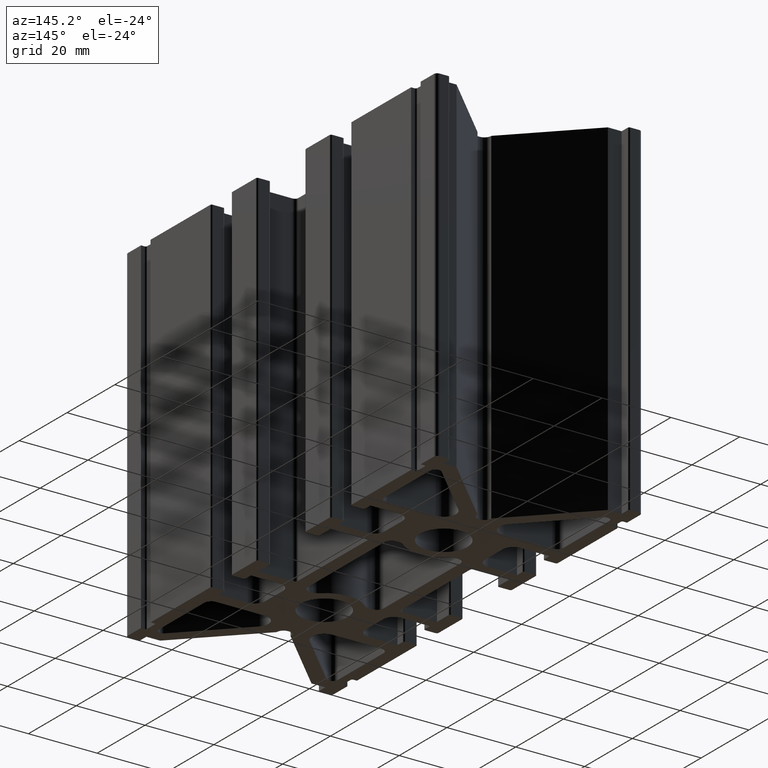
[diagram: clean part render]
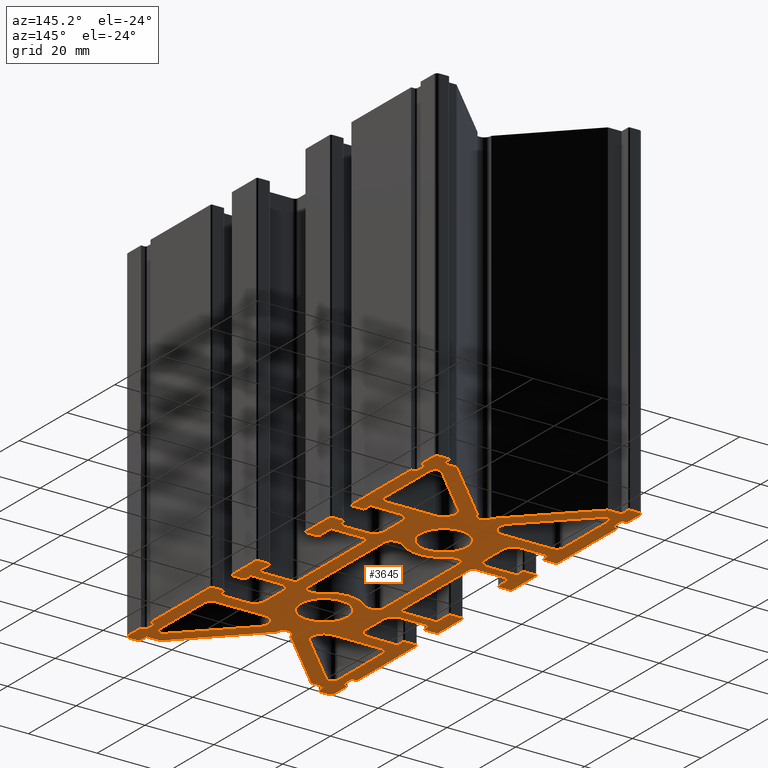
[diagram: same view with one face highlighted and labeled with its STEP entity id]
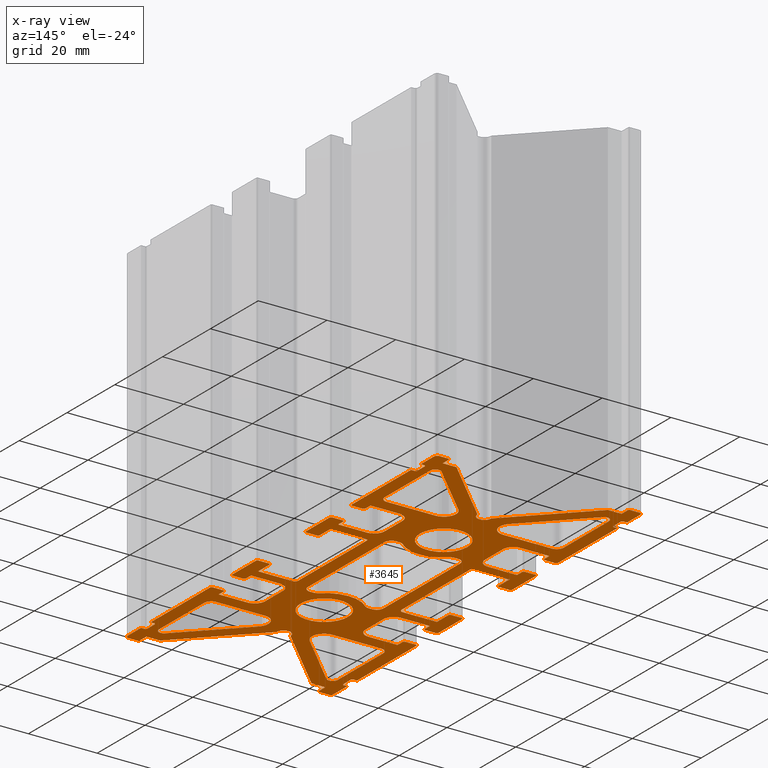
[diagram: x-ray of the same camera — body ghosted, the highlighted face saturated]
A machine part, auxiliary view. The second image highlights one B-rep face of the part: STEP entity #3645.
The next image is the same camera in x-ray: the body ghosted, the highlighted face saturated — about 0% of this face is hidden behind the body in this view.
In plain terms, the highlighted planar face has unit normal (0, 0, 1).
Its self-contained STEP definition (entity closure, byte-faithful):
#17=FACE_BOUND('',#372,.T.);
#18=FACE_BOUND('',#373,.T.);
#19=FACE_BOUND('',#374,.T.);
#20=FACE_BOUND('',#375,.T.);
#21=FACE_BOUND('',#376,.T.);
#22=FACE_BOUND('',#377,.T.);
#23=FACE_BOUND('',#378,.T.);
#49=PLANE('',#3883);
#181=FACE_OUTER_BOUND('',#371,.T.);
#371=EDGE_LOOP('',(#2575,#2576,#2577,#2578,#2579,#2580,#2581,#2582,#2583,
#2584,#2585,#2586,#2587,#2588,#2589,#2590,#2591,#2592,#2593,#2594,#2595,
#2596,#2597,#2598,#2599,#2600,#2601,#2602,#2603,#2604,#2605,#2606,#2607,
#2608,#2609,#2610,#2611,#2612,#2613,#2614,#2615,#2616,#2617,#2618,#2619,
#2620,#2621,#2622,#2623,#2624,#2625,#2626,#2627,#2628,#2629,#2630,#2631,
#2632,#2633,#2634,#2635,#2636,#2637,#2638,#2639,#2640,#2641,#2642,#2643,
#2644,#2645,#2646,#2647,#2648,#2649,#2650,#2651,#2652,#2653,#2654,#2655,
#2656,#2657,#2658,#2659,#2660,#2661,#2662,#2663,#2664,#2665,#2666,#2667,
#2668,#2669,#2670,#2671,#2672,#2673,#2674,#2675,#2676,#2677,#2678,#2679,
#2680,#2681,#2682,#2683,#2684,#2685,#2686,#2687,#2688,#2689,#2690,#2691,
#2692,#2693,#2694,#2695,#2696,#2697,#2698,#2699,#2700,#2701,#2702,#2703,
#2704,#2705,#2706,#2707,#2708,#2709,#2710,#2711,#2712,#2713,#2714,#2715,
#2716,#2717,#2718));
#372=EDGE_LOOP('',(#2719,#2720,#2721,#2722,#2723,#2724,#2725,#2726,#2727,
#2728,#2729,#2730,#2731,#2732,#2733,#2734));
#373=EDGE_LOOP('',(#2735,#2736,#2737,#2738,#2739,#2740));
#374=EDGE_LOOP('',(#2741,#2742,#2743,#2744,#2745,#2746));
#375=EDGE_LOOP('',(#2747,#2748,#2749,#2750,#2751,#2752));
#376=EDGE_LOOP('',(#2753,#2754,#2755,#2756,#2757,#2758));
#377=EDGE_LOOP('',(#2759));
#378=EDGE_LOOP('',(#2760));
#531=CIRCLE('',#3794,2.00000000000001);
#533=CIRCLE('',#3798,2.);
#535=CIRCLE('',#3801,9.90000000000002);
#537=CIRCLE('',#3804,2.);
#539=CIRCLE('',#3808,2.);
#541=CIRCLE('',#3812,2.);
#543=CIRCLE('',#3816,2.);
#545=CIRCLE('',#3819,9.90000000000002);
#547=CIRCLE('',#3822,2.);
#549=CIRCLE('',#3826,2.);
#551=CIRCLE('',#3830,1.5);
#553=CIRCLE('',#3834,2.);
#555=CIRCLE('',#3838,3.50000000000001);
#557=CIRCLE('',#3842,2.);
#559=CIRCLE('',#3846,1.5);
#561=CIRCLE('',#3850,3.50000000000001);
#563=CIRCLE('',#3854,3.5);
#565=CIRCLE('',#3858,1.5);
#567=CIRCLE('',#3862,2.);
#569=CIRCLE('',#3866,2.);
#571=CIRCLE('',#3870,1.5);
#573=CIRCLE('',#3874,3.5);
#575=CIRCLE('',#3878,6.90000000000001);
#577=CIRCLE('',#3881,6.90000000000001);
#579=CIRCLE('',#3884,3.00000000000001);
#580=CIRCLE('',#3885,0.5);
#581=CIRCLE('',#3886,0.5);
#582=CIRCLE('',#3887,0.5);
#583=CIRCLE('',#3888,0.5);
#584=CIRCLE('',#3889,1.);
#585=CIRCLE('',#3890,0.5);
#586=CIRCLE('',#3891,1.9);
#587=CIRCLE('',#3892,1.9);
#588=CIRCLE('',#3893,0.5);
#589=CIRCLE('',#3894,1.);
#590=CIRCLE('',#3895,0.5);
#591=CIRCLE('',#3896,0.5);
#592=CIRCLE('',#3897,0.5);
#593=CIRCLE('',#3898,0.5);
#594=CIRCLE('',#3899,3.00000000000001);
#595=CIRCLE('',#3900,3.);
#596=CIRCLE('',#3901,0.5);
#597=CIRCLE('',#3902,0.5);
#598=CIRCLE('',#3903,0.500000000000005);
#599=CIRCLE('',#3904,0.5);
#600=CIRCLE('',#3905,1.);
#601=CIRCLE('',#3906,1.);
#602=CIRCLE('',#3907,0.5);
#603=CIRCLE('',#3908,0.5);
#604=CIRCLE('',#3909,0.500000000000005);
#605=CIRCLE('',#3910,0.5);
#606=CIRCLE('',#3911,3.);
#607=CIRCLE('',#3912,3.);
#608=CIRCLE('',#3913,0.5);
#609=CIRCLE('',#3914,0.5);
#610=CIRCLE('',#3915,0.5);
#611=CIRCLE('',#3916,0.5);
#612=CIRCLE('',#3917,1.);
#613=CIRCLE('',#3918,0.5);
#614=CIRCLE('',#3919,1.9);
#615=CIRCLE('',#3920,1.9);
#616=CIRCLE('',#3921,0.5);
#617=CIRCLE('',#3922,1.);
#618=CIRCLE('',#3923,0.5);
#619=CIRCLE('',#3924,0.5);
#620=CIRCLE('',#3925,0.499999999999998);
#621=CIRCLE('',#3926,0.5);
#622=CIRCLE('',#3927,2.99999999999999);
#623=CIRCLE('',#3928,3.00000000000001);
#624=CIRCLE('',#3929,0.499999999999994);
#625=CIRCLE('',#3930,0.5);
#626=CIRCLE('',#3931,0.5);
#627=CIRCLE('',#3932,0.5);
#628=CIRCLE('',#3933,1.);
#629=CIRCLE('',#3934,1.);
#630=CIRCLE('',#3935,0.5);
#631=CIRCLE('',#3936,0.5);
#632=CIRCLE('',#3937,0.5);
#633=CIRCLE('',#3938,0.5);
#634=CIRCLE('',#3939,3.);
#693=LINE('',#5247,#1089);
#699=LINE('',#5271,#1095);
#703=LINE('',#5283,#1099);
#707=LINE('',#5295,#1103);
#713=LINE('',#5319,#1109);
#717=LINE('',#5330,#1113);
#721=LINE('',#5343,#1117);
#725=LINE('',#5355,#1121);
#729=LINE('',#5366,#1125);
#733=LINE('',#5379,#1129);
#737=LINE('',#5391,#1133);
#741=LINE('',#5402,#1137);
#745=LINE('',#5415,#1141);
#749=LINE('',#5427,#1145);
#753=LINE('',#5438,#1149);
#757=LINE('',#5451,#1153);
#761=LINE('',#5463,#1157);
#765=LINE('',#5474,#1161);
#767=LINE('',#5489,#1163);
#768=LINE('',#5493,#1164);
#769=LINE('',#5495,#1165);
#770=LINE('',#5499,#1166);
#771=LINE('',#5503,#1167);
#772=LINE('',#5505,#1168);
#773=LINE('',#5509,#1169);
#774=LINE('',#5513,#1170);
#775=LINE('',#5515,#1171);
#776=LINE('',#5519,#1172);
#777=LINE('',#5523,#1173);
#778=LINE('',#5525,#1174);
#779=LINE('',#5527,#1175);
#780=LINE('',#5529,#1176);
#781=LINE('',#5533,#1177);
#782=LINE('',#5537,#1178);
#783=LINE('',#5539,#1179);
#784=LINE('',#5541,#1180);
#785=LINE('',#5543,#1181);
#786=LINE('',#5547,#1182);
#787=LINE('',#5551,#1183);
#788=LINE('',#5553,#1184);
#789=LINE('',#5557,#1185);
#790=LINE('',#5561,#1186);
#791=LINE('',#5563,#1187);
#792=LINE('',#5567,#1188);
#793=LINE('',#5571,#1189);
#794=LINE('',#5573,#1190);
#795=LINE('',#5577,#1191);
#796=LINE('',#5581,#1192);
#797=LINE('',#5583,#1193);
#798=LINE('',#5587,#1194);
#799=LINE('',#5591,#1195);
#800=LINE('',#5595,#1196);
#801=LINE('',#5599,#1197);
#802=LINE('',#5601,#1198);
#803=LINE('',#5605,#1199);
#804=LINE('',#5609,#1200);
#805=LINE('',#5611,#1201);
#806=LINE('',#5615,#1202);
#807=LINE('',#5619,#1203);
#808=LINE('',#5623,#1204);
#809=LINE('',#5627,#1205);
#810=LINE('',#5629,#1206);
#811=LINE('',#5633,#1207);
#812=LINE('',#5637,#1208);
#813=LINE('',#5639,#1209);
#814=LINE('',#5643,#1210);
#815=LINE('',#5647,#1211);
#816=LINE('',#5649,#1212);
#817=LINE('',#5653,#1213);
#818=LINE('',#5657,#1214);
#819=LINE('',#5659,#1215);
#820=LINE('',#5663,#1216);
#821=LINE('',#5667,#1217);
#822=LINE('',#5669,#1218);
#823=LINE('',#5671,#1219);
#824=LINE('',#5673,#1220);
#825=LINE('',#5677,#1221);
#826=LINE('',#5681,#1222);
#827=LINE('',#5683,#1223);
#828=LINE('',#5685,#1224);
#829=LINE('',#5687,#1225);
#830=LINE('',#5691,#1226);
#831=LINE('',#5695,#1227);
#832=LINE('',#5697,#1228);
#833=LINE('',#5701,#1229);
#834=LINE('',#5705,#1230);
#835=LINE('',#5707,#1231);
#836=LINE('',#5711,#1232);
#837=LINE('',#5715,#1233);
#838=LINE('',#5717,#1234);
#839=LINE('',#5721,#1235);
#840=LINE('',#5725,#1236);
#841=LINE('',#5727,#1237);
#842=LINE('',#5731,#1238);
#843=LINE('',#5735,#1239);
#844=LINE('',#5739,#1240);
#845=LINE('',#5743,#1241);
#846=LINE('',#5745,#1242);
#847=LINE('',#5749,#1243);
#848=LINE('',#5753,#1244);
#849=LINE('',#5755,#1245);
#850=LINE('',#5759,#1246);
#851=LINE('',#5763,#1247);
#852=LINE('',#5767,#1248);
#853=LINE('',#5771,#1249);
#854=LINE('',#5773,#1250);
#1089=VECTOR('',#4153,0.934796964740059);
#1095=VECTOR('',#4179,0.934796964736364);
#1099=VECTOR('',#4191,32.0000000000001);
#1103=VECTOR('',#4203,0.934796964737927);
#1109=VECTOR('',#4229,0.934796964736648);
#1113=VECTOR('',#4241,32.0000000000001);
#1117=VECTOR('',#4253,18.9718254069434);
#1121=VECTOR('',#4265,14.1433982821968);
#1125=VECTOR('',#4277,22.7088924499139);
#1129=VECTOR('',#4289,18.9718254069393);
#1133=VECTOR('',#4301,22.7088924499088);
#1137=VECTOR('',#4313,14.1433982821935);
#1141=VECTOR('',#4325,22.7088924499252);
#1145=VECTOR('',#4337,18.9718254069513);
#1149=VECTOR('',#4349,14.1433982822048);
#1153=VECTOR('',#4361,18.9718254069503);
#1157=VECTOR('',#4373,22.7088924499244);
#1161=VECTOR('',#4385,14.1433982822046);
#1163=VECTOR('',#4401,7.50000000000007);
#1164=VECTOR('',#4404,8.40000000000202);
#1165=VECTOR('',#4405,2.10000000000017);
#1166=VECTOR('',#4408,2.99999999999969);
#1167=VECTOR('',#4411,24.8500000000004);
#1168=VECTOR('',#4412,0.999999999999943);
#1169=VECTOR('',#4415,3.00000000000032);
#1170=VECTOR('',#4418,0.999999999999943);
#1171=VECTOR('',#4419,5.4999999999965);
#1172=VECTOR('',#4422,2.49999999999972);
#1173=VECTOR('',#4425,2.49999999999813);
#1174=VECTOR('',#4426,3.99999999999807);
#1175=VECTOR('',#4427,28.2842712474705);
#1176=VECTOR('',#4428,0.0999999999941359);
#1177=VECTOR('',#4431,0.19999999999996);
#1178=VECTOR('',#4434,0.100000000004554);
#1179=VECTOR('',#4435,28.2842712474554);
#1180=VECTOR('',#4436,4.00000000000048);
#1181=VECTOR('',#4437,2.49999999999798);
#1182=VECTOR('',#4440,2.50000000000043);
#1183=VECTOR('',#4443,5.49999999999639);
#1184=VECTOR('',#4444,0.999999999999801);
#1185=VECTOR('',#4447,3.00000000000032);
#1186=VECTOR('',#4450,0.999999999999801);
#1187=VECTOR('',#4451,24.8500000000005);
#1188=VECTOR('',#4454,3.0000000000004);
#1189=VECTOR('',#4457,2.10000000000005);
#1190=VECTOR('',#4458,8.3999999999979);
#1191=VECTOR('',#4461,7.50000000000007);
#1192=VECTOR('',#4464,8.3999999999979);
#1193=VECTOR('',#4465,2.10000000000005);
#1194=VECTOR('',#4468,3.0000000000004);
#1195=VECTOR('',#4471,9.84999999999976);
#1196=VECTOR('',#4474,3.0000000000004);
#1197=VECTOR('',#4477,4.74999999999957);
#1198=VECTOR('',#4478,9.99999999999773);
#1199=VECTOR('',#4481,28.5);
#1200=VECTOR('',#4484,9.99999999999773);
#1201=VECTOR('',#4485,4.75000000000036);
#1202=VECTOR('',#4488,3.0000000000004);
#1203=VECTOR('',#4491,9.85000000000021);
#1204=VECTOR('',#4494,3.0000000000004);
#1205=VECTOR('',#4497,2.09999999999991);
#1206=VECTOR('',#4498,8.3999999999979);
#1207=VECTOR('',#4501,7.50000000000018);
#1208=VECTOR('',#4504,8.3999999999979);
#1209=VECTOR('',#4505,2.10000000000033);
#1210=VECTOR('',#4508,3.0000000000004);
#1211=VECTOR('',#4511,24.8500000000001);
#1212=VECTOR('',#4512,0.999999999999801);
#1213=VECTOR('',#4515,3.00000000000016);
#1214=VECTOR('',#4518,0.999999999999801);
#1215=VECTOR('',#4519,5.50000000000291);
#1216=VECTOR('',#4522,2.50000000000043);
#1217=VECTOR('',#4525,2.50000000000145);
#1218=VECTOR('',#4526,3.99999999999949);
#1219=VECTOR('',#4527,28.2842712474561);
#1220=VECTOR('',#4528,0.100000000004608);
#1221=VECTOR('',#4531,0.19999999999996);
#1222=VECTOR('',#4534,0.099999999996383);
#1223=VECTOR('',#4535,28.2842712474665);
#1224=VECTOR('',#4536,4.00000000000134);
#1225=VECTOR('',#4537,2.50000000000195);
#1226=VECTOR('',#4540,2.49999999999972);
#1227=VECTOR('',#4543,5.5000000000028);
#1228=VECTOR('',#4544,0.999999999999943);
#1229=VECTOR('',#4547,3.00000000000005);
#1230=VECTOR('',#4550,0.999999999999943);
#1231=VECTOR('',#4551,24.85);
#1232=VECTOR('',#4554,2.99999999999969);
#1233=VECTOR('',#4557,2.10000000000033);
#1234=VECTOR('',#4558,8.40000000000202);
#1235=VECTOR('',#4561,7.50000000000019);
#1236=VECTOR('',#4564,8.40000000000202);
#1237=VECTOR('',#4565,2.09999999999991);
#1238=VECTOR('',#4568,2.99999999999969);
#1239=VECTOR('',#4571,9.85000000000022);
#1240=VECTOR('',#4574,2.99999999999969);
#1241=VECTOR('',#4577,4.75000000000047);
#1242=VECTOR('',#4578,10.0000000000023);
#1243=VECTOR('',#4581,28.5000000000001);
#1244=VECTOR('',#4584,10.0000000000023);
#1245=VECTOR('',#4585,4.74999999999969);
#1246=VECTOR('',#4588,2.99999999999969);
#1247=VECTOR('',#4591,9.84999999999977);
#1248=VECTOR('',#4594,2.99999999999969);
#1249=VECTOR('',#4597,2.10000000000016);
#1250=VECTOR('',#4598,8.40000000000202);
#1484=VERTEX_POINT('',#5238);
#1485=VERTEX_POINT('',#5240);
#1487=VERTEX_POINT('',#5246);
#1489=VERTEX_POINT('',#5252);
#1491=VERTEX_POINT('',#5258);
#1493=VERTEX_POINT('',#5264);
#1495=VERTEX_POINT('',#5270);
#1497=VERTEX_POINT('',#5276);
#1499=VERTEX_POINT('',#5282);
#1501=VERTEX_POINT('',#5288);
#1503=VERTEX_POINT('',#5294);
#1505=VERTEX_POINT('',#5300);
#1507=VERTEX_POINT('',#5306);
#1509=VERTEX_POINT('',#5312);
#1511=VERTEX_POINT('',#5318);
#1513=VERTEX_POINT('',#5324);
#1516=VERTEX_POINT('',#5334);
#1517=VERTEX_POINT('',#5336);
#1519=VERTEX_POINT('',#5342);
#1521=VERTEX_POINT('',#5348);
#1523=VERTEX_POINT('',#5354);
#1525=VERTEX_POINT('',#5360);
#1528=VERTEX_POINT('',#5370);
#1529=VERTEX_POINT('',#5372);
#1531=VERTEX_POINT('',#5378);
#1533=VERTEX_POINT('',#5384);
#1535=VERTEX_POINT('',#5390);
#1537=VERTEX_POINT('',#5396);
#1540=VERTEX_POINT('',#5406);
#1541=VERTEX_POINT('',#5408);
#1543=VERTEX_POINT('',#5414);
#1545=VERTEX_POINT('',#5420);
#1547=VERTEX_POINT('',#5426);
#1549=VERTEX_POINT('',#5432);
#1552=VERTEX_POINT('',#5442);
#1553=VERTEX_POINT('',#5444);
#1555=VERTEX_POINT('',#5450);
#1557=VERTEX_POINT('',#5456);
#1559=VERTEX_POINT('',#5462);
#1561=VERTEX_POINT('',#5468);
#1563=VERTEX_POINT('',#5477);
#1565=VERTEX_POINT('',#5482);
#1567=VERTEX_POINT('',#5487);
#1568=VERTEX_POINT('',#5488);
#1569=VERTEX_POINT('',#5490);
#1570=VERTEX_POINT('',#5492);
#1571=VERTEX_POINT('',#5494);
#1572=VERTEX_POINT('',#5496);
#1573=VERTEX_POINT('',#5498);
#1574=VERTEX_POINT('',#5500);
#1575=VERTEX_POINT('',#5502);
#1576=VERTEX_POINT('',#5504);
#1577=VERTEX_POINT('',#5506);
#1578=VERTEX_POINT('',#5508);
#1579=VERTEX_POINT('',#5510);
#1580=VERTEX_POINT('',#5512);
#1581=VERTEX_POINT('',#5514);
#1582=VERTEX_POINT('',#5516);
#1583=VERTEX_POINT('',#5518);
#1584=VERTEX_POINT('',#5520);
#1585=VERTEX_POINT('',#5522);
#1586=VERTEX_POINT('',#5524);
#1587=VERTEX_POINT('',#5526);
#1588=VERTEX_POINT('',#5528);
#1589=VERTEX_POINT('',#5530);
#1590=VERTEX_POINT('',#5532);
#1591=VERTEX_POINT('',#5534);
#1592=VERTEX_POINT('',#5536);
#1593=VERTEX_POINT('',#5538);
#1594=VERTEX_POINT('',#5540);
#1595=VERTEX_POINT('',#5542);
#1596=VERTEX_POINT('',#5544);
#1597=VERTEX_POINT('',#5546);
#1598=VERTEX_POINT('',#5548);
#1599=VERTEX_POINT('',#5550);
#1600=VERTEX_POINT('',#5552);
#1601=VERTEX_POINT('',#5554);
#1602=VERTEX_POINT('',#5556);
#1603=VERTEX_POINT('',#5558);
#1604=VERTEX_POINT('',#5560);
#1605=VERTEX_POINT('',#5562);
#1606=VERTEX_POINT('',#5564);
#1607=VERTEX_POINT('',#5566);
#1608=VERTEX_POINT('',#5568);
#1609=VERTEX_POINT('',#5570);
#1610=VERTEX_POINT('',#5572);
#1611=VERTEX_POINT('',#5574);
#1612=VERTEX_POINT('',#5576);
#1613=VERTEX_POINT('',#5578);
#1614=VERTEX_POINT('',#5580);
#1615=VERTEX_POINT('',#5582);
#1616=VERTEX_POINT('',#5584);
#1617=VERTEX_POINT('',#5586);
#1618=VERTEX_POINT('',#5588);
#1619=VERTEX_POINT('',#5590);
#1620=VERTEX_POINT('',#5592);
#1621=VERTEX_POINT('',#5594);
#1622=VERTEX_POINT('',#5596);
#1623=VERTEX_POINT('',#5598);
#1624=VERTEX_POINT('',#5600);
#1625=VERTEX_POINT('',#5602);
#1626=VERTEX_POINT('',#5604);
#1627=VERTEX_POINT('',#5606);
#1628=VERTEX_POINT('',#5608);
#1629=VERTEX_POINT('',#5610);
#1630=VERTEX_POINT('',#5612);
#1631=VERTEX_POINT('',#5614);
#1632=VERTEX_POINT('',#5616);
#1633=VERTEX_POINT('',#5618);
#1634=VERTEX_POINT('',#5620);
#1635=VERTEX_POINT('',#5622);
#1636=VERTEX_POINT('',#5624);
#1637=VERTEX_POINT('',#5626);
#1638=VERTEX_POINT('',#5628);
#1639=VERTEX_POINT('',#5630);
#1640=VERTEX_POINT('',#5632);
#1641=VERTEX_POINT('',#5634);
#1642=VERTEX_POINT('',#5636);
#1643=VERTEX_POINT('',#5638);
#1644=VERTEX_POINT('',#5640);
#1645=VERTEX_POINT('',#5642);
#1646=VERTEX_POINT('',#5644);
#1647=VERTEX_POINT('',#5646);
#1648=VERTEX_POINT('',#5648);
#1649=VERTEX_POINT('',#5650);
#1650=VERTEX_POINT('',#5652);
#1651=VERTEX_POINT('',#5654);
#1652=VERTEX_POINT('',#5656);
#1653=VERTEX_POINT('',#5658);
#1654=VERTEX_POINT('',#5660);
#1655=VERTEX_POINT('',#5662);
#1656=VERTEX_POINT('',#5664);
#1657=VERTEX_POINT('',#5666);
#1658=VERTEX_POINT('',#5668);
#1659=VERTEX_POINT('',#5670);
#1660=VERTEX_POINT('',#5672);
#1661=VERTEX_POINT('',#5674);
#1662=VERTEX_POINT('',#5676);
#1663=VERTEX_POINT('',#5678);
#1664=VERTEX_POINT('',#5680);
#1665=VERTEX_POINT('',#5682);
#1666=VERTEX_POINT('',#5684);
#1667=VERTEX_POINT('',#5686);
#1668=VERTEX_POINT('',#5688);
#1669=VERTEX_POINT('',#5690);
#1670=VERTEX_POINT('',#5692);
#1671=VERTEX_POINT('',#5694);
#1672=VERTEX_POINT('',#5696);
#1673=VERTEX_POINT('',#5698);
#1674=VERTEX_POINT('',#5700);
#1675=VERTEX_POINT('',#5702);
#1676=VERTEX_POINT('',#5704);
#1677=VERTEX_POINT('',#5706);
#1678=VERTEX_POINT('',#5708);
#1679=VERTEX_POINT('',#5710);
#1680=VERTEX_POINT('',#5712);
#1681=VERTEX_POINT('',#5714);
#1682=VERTEX_POINT('',#5716);
#1683=VERTEX_POINT('',#5718);
#1684=VERTEX_POINT('',#5720);
#1685=VERTEX_POINT('',#5722);
#1686=VERTEX_POINT('',#5724);
#1687=VERTEX_POINT('',#5726);
#1688=VERTEX_POINT('',#5728);
#1689=VERTEX_POINT('',#5730);
#1690=VERTEX_POINT('',#5732);
#1691=VERTEX_POINT('',#5734);
#1692=VERTEX_POINT('',#5736);
#1693=VERTEX_POINT('',#5738);
#1694=VERTEX_POINT('',#5740);
#1695=VERTEX_POINT('',#5742);
#1696=VERTEX_POINT('',#5744);
#1697=VERTEX_POINT('',#5746);
#1698=VERTEX_POINT('',#5748);
#1699=VERTEX_POINT('',#5750);
#1700=VERTEX_POINT('',#5752);
#1701=VERTEX_POINT('',#5754);
#1702=VERTEX_POINT('',#5756);
#1703=VERTEX_POINT('',#5758);
#1704=VERTEX_POINT('',#5760);
#1705=VERTEX_POINT('',#5762);
#1706=VERTEX_POINT('',#5764);
#1707=VERTEX_POINT('',#5766);
#1708=VERTEX_POINT('',#5768);
#1709=VERTEX_POINT('',#5770);
#1710=VERTEX_POINT('',#5772);
#1856=EDGE_CURVE('',#1485,#1484,#531,.T.);
#1859=EDGE_CURVE('',#1487,#1485,#693,.T.);
#1862=EDGE_CURVE('',#1489,#1487,#533,.T.);
#1865=EDGE_CURVE('',#1491,#1489,#535,.T.);
#1868=EDGE_CURVE('',#1493,#1491,#537,.T.);
#1871=EDGE_CURVE('',#1495,#1493,#699,.T.);
#1874=EDGE_CURVE('',#1497,#1495,#539,.T.);
#1877=EDGE_CURVE('',#1499,#1497,#703,.T.);
#1880=EDGE_CURVE('',#1501,#1499,#541,.T.);
#1883=EDGE_CURVE('',#1503,#1501,#707,.T.);
#1886=EDGE_CURVE('',#1505,#1503,#543,.T.);
#1889=EDGE_CURVE('',#1507,#1505,#545,.T.);
#1892=EDGE_CURVE('',#1509,#1507,#547,.T.);
#1895=EDGE_CURVE('',#1511,#1509,#713,.T.);
#1898=EDGE_CURVE('',#1513,#1511,#549,.T.);
#1901=EDGE_CURVE('',#1484,#1513,#717,.T.);
#1904=EDGE_CURVE('',#1517,#1516,#551,.T.);
#1907=EDGE_CURVE('',#1519,#1517,#721,.T.);
#1910=EDGE_CURVE('',#1521,#1519,#553,.T.);
#1913=EDGE_CURVE('',#1523,#1521,#725,.T.);
#1916=EDGE_CURVE('',#1525,#1523,#555,.T.);
#1919=EDGE_CURVE('',#1516,#1525,#729,.T.);
#1922=EDGE_CURVE('',#1529,#1528,#557,.T.);
#1925=EDGE_CURVE('',#1531,#1529,#733,.T.);
#1928=EDGE_CURVE('',#1533,#1531,#559,.T.);
#1931=EDGE_CURVE('',#1535,#1533,#737,.T.);
#1934=EDGE_CURVE('',#1537,#1535,#561,.T.);
#1937=EDGE_CURVE('',#1528,#1537,#741,.T.);
#1940=EDGE_CURVE('',#1541,#1540,#563,.T.);
#1943=EDGE_CURVE('',#1543,#1541,#745,.T.);
#1946=EDGE_CURVE('',#1545,#1543,#565,.T.);
#1949=EDGE_CURVE('',#1547,#1545,#749,.T.);
#1952=EDGE_CURVE('',#1549,#1547,#567,.T.);
#1955=EDGE_CURVE('',#1540,#1549,#753,.T.);
#1958=EDGE_CURVE('',#1553,#1552,#569,.T.);
#1961=EDGE_CURVE('',#1555,#1553,#757,.T.);
#1964=EDGE_CURVE('',#1557,#1555,#571,.T.);
#1967=EDGE_CURVE('',#1559,#1557,#761,.T.);
#1970=EDGE_CURVE('',#1561,#1559,#573,.T.);
#1973=EDGE_CURVE('',#1552,#1561,#765,.T.);
#1975=EDGE_CURVE('',#1563,#1563,#575,.T.);
#1977=EDGE_CURVE('',#1565,#1565,#577,.T.);
#1979=EDGE_CURVE('',#1567,#1568,#767,.T.);
#1980=EDGE_CURVE('',#1568,#1569,#579,.T.);
#1981=EDGE_CURVE('',#1569,#1570,#768,.T.);
#1982=EDGE_CURVE('',#1570,#1571,#769,.T.);
#1983=EDGE_CURVE('',#1571,#1572,#580,.T.);
#1984=EDGE_CURVE('',#1572,#1573,#770,.T.);
#1985=EDGE_CURVE('',#1573,#1574,#581,.T.);
#1986=EDGE_CURVE('',#1574,#1575,#771,.T.);
#1987=EDGE_CURVE('',#1575,#1576,#772,.T.);
#1988=EDGE_CURVE('',#1576,#1577,#582,.T.);
#1989=EDGE_CURVE('',#1577,#1578,#773,.T.);
#1990=EDGE_CURVE('',#1578,#1579,#583,.T.);
#1991=EDGE_CURVE('',#1579,#1580,#774,.T.);
#1992=EDGE_CURVE('',#1580,#1581,#775,.T.);
#1993=EDGE_CURVE('',#1581,#1582,#584,.T.);
#1994=EDGE_CURVE('',#1582,#1583,#776,.T.);
#1995=EDGE_CURVE('',#1583,#1584,#585,.T.);
#1996=EDGE_CURVE('',#1584,#1585,#777,.T.);
#1997=EDGE_CURVE('',#1585,#1586,#778,.T.);
#1998=EDGE_CURVE('',#1586,#1587,#779,.T.);
#1999=EDGE_CURVE('',#1587,#1588,#780,.T.);
#2000=EDGE_CURVE('',#1588,#1589,#586,.T.);
#2001=EDGE_CURVE('',#1589,#1590,#781,.T.);
#2002=EDGE_CURVE('',#1590,#1591,#587,.T.);
#2003=EDGE_CURVE('',#1591,#1592,#782,.T.);
#2004=EDGE_CURVE('',#1592,#1593,#783,.T.);
#2005=EDGE_CURVE('',#1593,#1594,#784,.T.);
#2006=EDGE_CURVE('',#1594,#1595,#785,.T.);
#2007=EDGE_CURVE('',#1595,#1596,#588,.T.);
#2008=EDGE_CURVE('',#1596,#1597,#786,.T.);
#2009=EDGE_CURVE('',#1597,#1598,#589,.T.);
#2010=EDGE_CURVE('',#1598,#1599,#787,.T.);
#2011=EDGE_CURVE('',#1599,#1600,#788,.T.);
#2012=EDGE_CURVE('',#1600,#1601,#590,.T.);
#2013=EDGE_CURVE('',#1601,#1602,#789,.T.);
#2014=EDGE_CURVE('',#1602,#1603,#591,.T.);
#2015=EDGE_CURVE('',#1603,#1604,#790,.T.);
#2016=EDGE_CURVE('',#1604,#1605,#791,.T.);
#2017=EDGE_CURVE('',#1605,#1606,#592,.T.);
#2018=EDGE_CURVE('',#1606,#1607,#792,.T.);
#2019=EDGE_CURVE('',#1607,#1608,#593,.T.);
#2020=EDGE_CURVE('',#1608,#1609,#793,.T.);
#2021=EDGE_CURVE('',#1609,#1610,#794,.T.);
#2022=EDGE_CURVE('',#1610,#1611,#594,.T.);
#2023=EDGE_CURVE('',#1611,#1612,#795,.T.);
#2024=EDGE_CURVE('',#1612,#1613,#595,.T.);
#2025=EDGE_CURVE('',#1613,#1614,#796,.T.);
#2026=EDGE_CURVE('',#1614,#1615,#797,.T.);
#2027=EDGE_CURVE('',#1615,#1616,#596,.T.);
#2028=EDGE_CURVE('',#1616,#1617,#798,.T.);
#2029=EDGE_CURVE('',#1617,#1618,#597,.T.);
#2030=EDGE_CURVE('',#1618,#1619,#799,.T.);
#2031=EDGE_CURVE('',#1619,#1620,#598,.T.);
#2032=EDGE_CURVE('',#1620,#1621,#800,.T.);
#2033=EDGE_CURVE('',#1621,#1622,#599,.T.);
#2034=EDGE_CURVE('',#1622,#1623,#801,.T.);
#2035=EDGE_CURVE('',#1623,#1624,#802,.T.);
#2036=EDGE_CURVE('',#1624,#1625,#600,.T.);
#2037=EDGE_CURVE('',#1625,#1626,#803,.T.);
#2038=EDGE_CURVE('',#1626,#1627,#601,.T.);
#2039=EDGE_CURVE('',#1627,#1628,#804,.T.);
#2040=EDGE_CURVE('',#1628,#1629,#805,.T.);
#2041=EDGE_CURVE('',#1629,#1630,#602,.T.);
#2042=EDGE_CURVE('',#1630,#1631,#806,.T.);
#2043=EDGE_CURVE('',#1631,#1632,#603,.T.);
#2044=EDGE_CURVE('',#1632,#1633,#807,.T.);
#2045=EDGE_CURVE('',#1633,#1634,#604,.T.);
#2046=EDGE_CURVE('',#1634,#1635,#808,.T.);
#2047=EDGE_CURVE('',#1635,#1636,#605,.T.);
#2048=EDGE_CURVE('',#1636,#1637,#809,.T.);
#2049=EDGE_CURVE('',#1637,#1638,#810,.T.);
#2050=EDGE_CURVE('',#1638,#1639,#606,.T.);
#2051=EDGE_CURVE('',#1639,#1640,#811,.T.);
#2052=EDGE_CURVE('',#1640,#1641,#607,.T.);
#2053=EDGE_CURVE('',#1641,#1642,#812,.T.);
#2054=EDGE_CURVE('',#1642,#1643,#813,.T.);
#2055=EDGE_CURVE('',#1643,#1644,#608,.T.);
#2056=EDGE_CURVE('',#1644,#1645,#814,.T.);
#2057=EDGE_CURVE('',#1645,#1646,#609,.T.);
#2058=EDGE_CURVE('',#1646,#1647,#815,.T.);
#2059=EDGE_CURVE('',#1647,#1648,#816,.T.);
#2060=EDGE_CURVE('',#1648,#1649,#610,.T.);
#2061=EDGE_CURVE('',#1649,#1650,#817,.T.);
#2062=EDGE_CURVE('',#1650,#1651,#611,.T.);
#2063=EDGE_CURVE('',#1651,#1652,#818,.T.);
#2064=EDGE_CURVE('',#1652,#1653,#819,.T.);
#2065=EDGE_CURVE('',#1653,#1654,#612,.T.);
#2066=EDGE_CURVE('',#1654,#1655,#820,.T.);
#2067=EDGE_CURVE('',#1655,#1656,#613,.T.);
#2068=EDGE_CURVE('',#1656,#1657,#821,.T.);
#2069=EDGE_CURVE('',#1657,#1658,#822,.T.);
#2070=EDGE_CURVE('',#1658,#1659,#823,.T.);
#2071=EDGE_CURVE('',#1659,#1660,#824,.T.);
#2072=EDGE_CURVE('',#1660,#1661,#614,.T.);
#2073=EDGE_CURVE('',#1661,#1662,#825,.T.);
#2074=EDGE_CURVE('',#1662,#1663,#615,.T.);
#2075=EDGE_CURVE('',#1663,#1664,#826,.T.);
#2076=EDGE_CURVE('',#1664,#1665,#827,.T.);
#2077=EDGE_CURVE('',#1665,#1666,#828,.T.);
#2078=EDGE_CURVE('',#1666,#1667,#829,.T.);
#2079=EDGE_CURVE('',#1667,#1668,#616,.T.);
#2080=EDGE_CURVE('',#1668,#1669,#830,.T.);
#2081=EDGE_CURVE('',#1669,#1670,#617,.T.);
#2082=EDGE_CURVE('',#1670,#1671,#831,.T.);
#2083=EDGE_CURVE('',#1671,#1672,#832,.T.);
#2084=EDGE_CURVE('',#1672,#1673,#618,.T.);
#2085=EDGE_CURVE('',#1673,#1674,#833,.T.);
#2086=EDGE_CURVE('',#1674,#1675,#619,.T.);
#2087=EDGE_CURVE('',#1675,#1676,#834,.T.);
#2088=EDGE_CURVE('',#1676,#1677,#835,.T.);
#2089=EDGE_CURVE('',#1677,#1678,#620,.T.);
#2090=EDGE_CURVE('',#1678,#1679,#836,.T.);
#2091=EDGE_CURVE('',#1679,#1680,#621,.T.);
#2092=EDGE_CURVE('',#1680,#1681,#837,.T.);
#2093=EDGE_CURVE('',#1681,#1682,#838,.T.);
#2094=EDGE_CURVE('',#1682,#1683,#622,.T.);
#2095=EDGE_CURVE('',#1683,#1684,#839,.T.);
#2096=EDGE_CURVE('',#1684,#1685,#623,.T.);
#2097=EDGE_CURVE('',#1685,#1686,#840,.T.);
#2098=EDGE_CURVE('',#1686,#1687,#841,.T.);
#2099=EDGE_CURVE('',#1687,#1688,#624,.T.);
#2100=EDGE_CURVE('',#1688,#1689,#842,.T.);
#2101=EDGE_CURVE('',#1689,#1690,#625,.T.);
#2102=EDGE_CURVE('',#1690,#1691,#843,.T.);
#2103=EDGE_CURVE('',#1691,#1692,#626,.T.);
#2104=EDGE_CURVE('',#1692,#1693,#844,.T.);
#2105=EDGE_CURVE('',#1693,#1694,#627,.T.);
#2106=EDGE_CURVE('',#1694,#1695,#845,.T.);
#2107=EDGE_CURVE('',#1695,#1696,#846,.T.);
#2108=EDGE_CURVE('',#1696,#1697,#628,.T.);
#2109=EDGE_CURVE('',#1697,#1698,#847,.T.);
#2110=EDGE_CURVE('',#1698,#1699,#629,.T.);
#2111=EDGE_CURVE('',#1699,#1700,#848,.T.);
#2112=EDGE_CURVE('',#1700,#1701,#849,.T.);
#2113=EDGE_CURVE('',#1701,#1702,#630,.T.);
#2114=EDGE_CURVE('',#1702,#1703,#850,.T.);
#2115=EDGE_CURVE('',#1703,#1704,#631,.T.);
#2116=EDGE_CURVE('',#1704,#1705,#851,.T.);
#2117=EDGE_CURVE('',#1705,#1706,#632,.T.);
#2118=EDGE_CURVE('',#1706,#1707,#852,.T.);
#2119=EDGE_CURVE('',#1707,#1708,#633,.T.);
#2120=EDGE_CURVE('',#1708,#1709,#853,.T.);
#2121=EDGE_CURVE('',#1709,#1710,#854,.T.);
#2122=EDGE_CURVE('',#1710,#1567,#634,.T.);
#2575=ORIENTED_EDGE('',*,*,#1979,.T.);
#2576=ORIENTED_EDGE('',*,*,#1980,.T.);
#2577=ORIENTED_EDGE('',*,*,#1981,.T.);
#2578=ORIENTED_EDGE('',*,*,#1982,.T.);
#2579=ORIENTED_EDGE('',*,*,#1983,.T.);
#2580=ORIENTED_EDGE('',*,*,#1984,.T.);
#2581=ORIENTED_EDGE('',*,*,#1985,.T.);
#2582=ORIENTED_EDGE('',*,*,#1986,.T.);
#2583=ORIENTED_EDGE('',*,*,#1987,.T.);
#2584=ORIENTED_EDGE('',*,*,#1988,.T.);
#2585=ORIENTED_EDGE('',*,*,#1989,.T.);
#2586=ORIENTED_EDGE('',*,*,#1990,.T.);
#2587=ORIENTED_EDGE('',*,*,#1991,.T.);
#2588=ORIENTED_EDGE('',*,*,#1992,.T.);
#2589=ORIENTED_EDGE('',*,*,#1993,.T.);
#2590=ORIENTED_EDGE('',*,*,#1994,.T.);
#2591=ORIENTED_EDGE('',*,*,#1995,.T.);
#2592=ORIENTED_EDGE('',*,*,#1996,.T.);
#2593=ORIENTED_EDGE('',*,*,#1997,.T.);
#2594=ORIENTED_EDGE('',*,*,#1998,.T.);
#2595=ORIENTED_EDGE('',*,*,#1999,.T.);
#2596=ORIENTED_EDGE('',*,*,#2000,.T.);
#2597=ORIENTED_EDGE('',*,*,#2001,.T.);
#2598=ORIENTED_EDGE('',*,*,#2002,.T.);
#2599=ORIENTED_EDGE('',*,*,#2003,.T.);
#2600=ORIENTED_EDGE('',*,*,#2004,.T.);
#2601=ORIENTED_EDGE('',*,*,#2005,.T.);
#2602=ORIENTED_EDGE('',*,*,#2006,.T.);
#2603=ORIENTED_EDGE('',*,*,#2007,.T.);
#2604=ORIENTED_EDGE('',*,*,#2008,.T.);
#2605=ORIENTED_EDGE('',*,*,#2009,.T.);
#2606=ORIENTED_EDGE('',*,*,#2010,.T.);
#2607=ORIENTED_EDGE('',*,*,#2011,.T.);
#2608=ORIENTED_EDGE('',*,*,#2012,.T.);
#2609=ORIENTED_EDGE('',*,*,#2013,.T.);
#2610=ORIENTED_EDGE('',*,*,#2014,.T.);
#2611=ORIENTED_EDGE('',*,*,#2015,.T.);
#2612=ORIENTED_EDGE('',*,*,#2016,.T.);
#2613=ORIENTED_EDGE('',*,*,#2017,.T.);
#2614=ORIENTED_EDGE('',*,*,#2018,.T.);
#2615=ORIENTED_EDGE('',*,*,#2019,.T.);
#2616=ORIENTED_EDGE('',*,*,#2020,.T.);
#2617=ORIENTED_EDGE('',*,*,#2021,.T.);
#2618=ORIENTED_EDGE('',*,*,#2022,.T.);
#2619=ORIENTED_EDGE('',*,*,#2023,.T.);
#2620=ORIENTED_EDGE('',*,*,#2024,.T.);
#2621=ORIENTED_EDGE('',*,*,#2025,.T.);
#2622=ORIENTED_EDGE('',*,*,#2026,.T.);
#2623=ORIENTED_EDGE('',*,*,#2027,.T.);
#2624=ORIENTED_EDGE('',*,*,#2028,.T.);
#2625=ORIENTED_EDGE('',*,*,#2029,.T.);
#2626=ORIENTED_EDGE('',*,*,#2030,.T.);
#2627=ORIENTED_EDGE('',*,*,#2031,.T.);
#2628=ORIENTED_EDGE('',*,*,#2032,.T.);
#2629=ORIENTED_EDGE('',*,*,#2033,.T.);
#2630=ORIENTED_EDGE('',*,*,#2034,.T.);
#2631=ORIENTED_EDGE('',*,*,#2035,.T.);
#2632=ORIENTED_EDGE('',*,*,#2036,.T.);
#2633=ORIENTED_EDGE('',*,*,#2037,.T.);
#2634=ORIENTED_EDGE('',*,*,#2038,.T.);
#2635=ORIENTED_EDGE('',*,*,#2039,.T.);
#2636=ORIENTED_EDGE('',*,*,#2040,.T.);
#2637=ORIENTED_EDGE('',*,*,#2041,.T.);
#2638=ORIENTED_EDGE('',*,*,#2042,.T.);
#2639=ORIENTED_EDGE('',*,*,#2043,.T.);
#2640=ORIENTED_EDGE('',*,*,#2044,.T.);
#2641=ORIENTED_EDGE('',*,*,#2045,.T.);
#2642=ORIENTED_EDGE('',*,*,#2046,.T.);
#2643=ORIENTED_EDGE('',*,*,#2047,.T.);
#2644=ORIENTED_EDGE('',*,*,#2048,.T.);
#2645=ORIENTED_EDGE('',*,*,#2049,.T.);
#2646=ORIENTED_EDGE('',*,*,#2050,.T.);
#2647=ORIENTED_EDGE('',*,*,#2051,.T.);
#2648=ORIENTED_EDGE('',*,*,#2052,.T.);
#2649=ORIENTED_EDGE('',*,*,#2053,.T.);
#2650=ORIENTED_EDGE('',*,*,#2054,.T.);
#2651=ORIENTED_EDGE('',*,*,#2055,.T.);
#2652=ORIENTED_EDGE('',*,*,#2056,.T.);
#2653=ORIENTED_EDGE('',*,*,#2057,.T.);
#2654=ORIENTED_EDGE('',*,*,#2058,.T.);
#2655=ORIENTED_EDGE('',*,*,#2059,.T.);
#2656=ORIENTED_EDGE('',*,*,#2060,.T.);
#2657=ORIENTED_EDGE('',*,*,#2061,.T.);
#2658=ORIENTED_EDGE('',*,*,#2062,.T.);
#2659=ORIENTED_EDGE('',*,*,#2063,.T.);
#2660=ORIENTED_EDGE('',*,*,#2064,.T.);
#2661=ORIENTED_EDGE('',*,*,#2065,.T.);
#2662=ORIENTED_EDGE('',*,*,#2066,.T.);
#2663=ORIENTED_EDGE('',*,*,#2067,.T.);
#2664=ORIENTED_EDGE('',*,*,#2068,.T.);
#2665=ORIENTED_EDGE('',*,*,#2069,.T.);
#2666=ORIENTED_EDGE('',*,*,#2070,.T.);
#2667=ORIENTED_EDGE('',*,*,#2071,.T.);
#2668=ORIENTED_EDGE('',*,*,#2072,.T.);
#2669=ORIENTED_EDGE('',*,*,#2073,.T.);
#2670=ORIENTED_EDGE('',*,*,#2074,.T.);
#2671=ORIENTED_EDGE('',*,*,#2075,.T.);
#2672=ORIENTED_EDGE('',*,*,#2076,.T.);
#2673=ORIENTED_EDGE('',*,*,#2077,.T.);
#2674=ORIENTED_EDGE('',*,*,#2078,.T.);
#2675=ORIENTED_EDGE('',*,*,#2079,.T.);
#2676=ORIENTED_EDGE('',*,*,#2080,.T.);
#2677=ORIENTED_EDGE('',*,*,#2081,.T.);
#2678=ORIENTED_EDGE('',*,*,#2082,.T.);
#2679=ORIENTED_EDGE('',*,*,#2083,.T.);
#2680=ORIENTED_EDGE('',*,*,#2084,.T.);
#2681=ORIENTED_EDGE('',*,*,#2085,.T.);
#2682=ORIENTED_EDGE('',*,*,#2086,.T.);
#2683=ORIENTED_EDGE('',*,*,#2087,.T.);
#2684=ORIENTED_EDGE('',*,*,#2088,.T.);
#2685=ORIENTED_EDGE('',*,*,#2089,.T.);
#2686=ORIENTED_EDGE('',*,*,#2090,.T.);
#2687=ORIENTED_EDGE('',*,*,#2091,.T.);
#2688=ORIENTED_EDGE('',*,*,#2092,.T.);
#2689=ORIENTED_EDGE('',*,*,#2093,.T.);
#2690=ORIENTED_EDGE('',*,*,#2094,.T.);
#2691=ORIENTED_EDGE('',*,*,#2095,.T.);
#2692=ORIENTED_EDGE('',*,*,#2096,.T.);
#2693=ORIENTED_EDGE('',*,*,#2097,.T.);
#2694=ORIENTED_EDGE('',*,*,#2098,.T.);
#2695=ORIENTED_EDGE('',*,*,#2099,.T.);
#2696=ORIENTED_EDGE('',*,*,#2100,.T.);
#2697=ORIENTED_EDGE('',*,*,#2101,.T.);
#2698=ORIENTED_EDGE('',*,*,#2102,.T.);
#2699=ORIENTED_EDGE('',*,*,#2103,.T.);
#2700=ORIENTED_EDGE('',*,*,#2104,.T.);
#2701=ORIENTED_EDGE('',*,*,#2105,.T.);
#2702=ORIENTED_EDGE('',*,*,#2106,.T.);
#2703=ORIENTED_EDGE('',*,*,#2107,.T.);
#2704=ORIENTED_EDGE('',*,*,#2108,.T.);
#2705=ORIENTED_EDGE('',*,*,#2109,.T.);
#2706=ORIENTED_EDGE('',*,*,#2110,.T.);
#2707=ORIENTED_EDGE('',*,*,#2111,.T.);
#2708=ORIENTED_EDGE('',*,*,#2112,.T.);
#2709=ORIENTED_EDGE('',*,*,#2113,.T.);
#2710=ORIENTED_EDGE('',*,*,#2114,.T.);
#2711=ORIENTED_EDGE('',*,*,#2115,.T.);
#2712=ORIENTED_EDGE('',*,*,#2116,.T.);
#2713=ORIENTED_EDGE('',*,*,#2117,.T.);
#2714=ORIENTED_EDGE('',*,*,#2118,.T.);
#2715=ORIENTED_EDGE('',*,*,#2119,.T.);
#2716=ORIENTED_EDGE('',*,*,#2120,.T.);
#2717=ORIENTED_EDGE('',*,*,#2121,.T.);
#2718=ORIENTED_EDGE('',*,*,#2122,.T.);
#2719=ORIENTED_EDGE('',*,*,#1856,.T.);
#2720=ORIENTED_EDGE('',*,*,#1901,.T.);
#2721=ORIENTED_EDGE('',*,*,#1898,.T.);
#2722=ORIENTED_EDGE('',*,*,#1895,.T.);
#2723=ORIENTED_EDGE('',*,*,#1892,.T.);
#2724=ORIENTED_EDGE('',*,*,#1889,.T.);
#2725=ORIENTED_EDGE('',*,*,#1886,.T.);
#2726=ORIENTED_EDGE('',*,*,#1883,.T.);
#2727=ORIENTED_EDGE('',*,*,#1880,.T.);
#2728=ORIENTED_EDGE('',*,*,#1877,.T.);
#2729=ORIENTED_EDGE('',*,*,#1874,.T.);
#2730=ORIENTED_EDGE('',*,*,#1871,.T.);
#2731=ORIENTED_EDGE('',*,*,#1868,.T.);
#2732=ORIENTED_EDGE('',*,*,#1865,.T.);
#2733=ORIENTED_EDGE('',*,*,#1862,.T.);
#2734=ORIENTED_EDGE('',*,*,#1859,.T.);
#2735=ORIENTED_EDGE('',*,*,#1904,.T.);
#2736=ORIENTED_EDGE('',*,*,#1919,.T.);
#2737=ORIENTED_EDGE('',*,*,#1916,.T.);
#2738=ORIENTED_EDGE('',*,*,#1913,.T.);
#2739=ORIENTED_EDGE('',*,*,#1910,.T.);
#2740=ORIENTED_EDGE('',*,*,#1907,.T.);
#2741=ORIENTED_EDGE('',*,*,#1922,.T.);
#2742=ORIENTED_EDGE('',*,*,#1937,.T.);
#2743=ORIENTED_EDGE('',*,*,#1934,.T.);
#2744=ORIENTED_EDGE('',*,*,#1931,.T.);
#2745=ORIENTED_EDGE('',*,*,#1928,.T.);
#2746=ORIENTED_EDGE('',*,*,#1925,.T.);
#2747=ORIENTED_EDGE('',*,*,#1940,.T.);
#2748=ORIENTED_EDGE('',*,*,#1955,.T.);
#2749=ORIENTED_EDGE('',*,*,#1952,.T.);
#2750=ORIENTED_EDGE('',*,*,#1949,.T.);
#2751=ORIENTED_EDGE('',*,*,#1946,.T.);
#2752=ORIENTED_EDGE('',*,*,#1943,.T.);
#2753=ORIENTED_EDGE('',*,*,#1958,.T.);
#2754=ORIENTED_EDGE('',*,*,#1973,.T.);
#2755=ORIENTED_EDGE('',*,*,#1970,.T.);
#2756=ORIENTED_EDGE('',*,*,#1967,.T.);
#2757=ORIENTED_EDGE('',*,*,#1964,.T.);
#2758=ORIENTED_EDGE('',*,*,#1961,.T.);
#2759=ORIENTED_EDGE('',*,*,#1975,.T.);
#2760=ORIENTED_EDGE('',*,*,#1977,.T.);
#3645=ADVANCED_FACE('',(#181,#17,#18,#19,#20,#21,#22,#23),#49,.F.);
#3794=AXIS2_PLACEMENT_3D('',#5241,#4146,#4147);
#3798=AXIS2_PLACEMENT_3D('',#5253,#4158,#4159);
#3801=AXIS2_PLACEMENT_3D('',#5259,#4165,#4166);
#3804=AXIS2_PLACEMENT_3D('',#5265,#4172,#4173);
#3808=AXIS2_PLACEMENT_3D('',#5277,#4184,#4185);
#3812=AXIS2_PLACEMENT_3D('',#5289,#4196,#4197);
#3816=AXIS2_PLACEMENT_3D('',#5301,#4208,#4209);
#3819=AXIS2_PLACEMENT_3D('',#5307,#4215,#4216);
#3822=AXIS2_PLACEMENT_3D('',#5313,#4222,#4223);
#3826=AXIS2_PLACEMENT_3D('',#5325,#4234,#4235);
#3830=AXIS2_PLACEMENT_3D('',#5337,#4246,#4247);
#3834=AXIS2_PLACEMENT_3D('',#5349,#4258,#4259);
#3838=AXIS2_PLACEMENT_3D('',#5361,#4270,#4271);
#3842=AXIS2_PLACEMENT_3D('',#5373,#4282,#4283);
#3846=AXIS2_PLACEMENT_3D('',#5385,#4294,#4295);
#3850=AXIS2_PLACEMENT_3D('',#5397,#4306,#4307);
#3854=AXIS2_PLACEMENT_3D('',#5409,#4318,#4319);
#3858=AXIS2_PLACEMENT_3D('',#5421,#4330,#4331);
#3862=AXIS2_PLACEMENT_3D('',#5433,#4342,#4343);
#3866=AXIS2_PLACEMENT_3D('',#5445,#4354,#4355);
#3870=AXIS2_PLACEMENT_3D('',#5457,#4366,#4367);
#3874=AXIS2_PLACEMENT_3D('',#5469,#4378,#4379);
#3878=AXIS2_PLACEMENT_3D('',#5478,#4389,#4390);
#3881=AXIS2_PLACEMENT_3D('',#5483,#4395,#4396);
#3883=AXIS2_PLACEMENT_3D('',#5486,#4399,#4400);
#3884=AXIS2_PLACEMENT_3D('',#5491,#4402,#4403);
#3885=AXIS2_PLACEMENT_3D('',#5497,#4406,#4407);
#3886=AXIS2_PLACEMENT_3D('',#5501,#4409,#4410);
#3887=AXIS2_PLACEMENT_3D('',#5507,#4413,#4414);
#3888=AXIS2_PLACEMENT_3D('',#5511,#4416,#4417);
#3889=AXIS2_PLACEMENT_3D('',#5517,#4420,#4421);
#3890=AXIS2_PLACEMENT_3D('',#5521,#4423,#4424);
#3891=AXIS2_PLACEMENT_3D('',#5531,#4429,#4430);
#3892=AXIS2_PLACEMENT_3D('',#5535,#4432,#4433);
#3893=AXIS2_PLACEMENT_3D('',#5545,#4438,#4439);
#3894=AXIS2_PLACEMENT_3D('',#5549,#4441,#4442);
#3895=AXIS2_PLACEMENT_3D('',#5555,#4445,#4446);
#3896=AXIS2_PLACEMENT_3D('',#5559,#4448,#4449);
#3897=AXIS2_PLACEMENT_3D('',#5565,#4452,#4453);
#3898=AXIS2_PLACEMENT_3D('',#5569,#4455,#4456);
#3899=AXIS2_PLACEMENT_3D('',#5575,#4459,#4460);
#3900=AXIS2_PLACEMENT_3D('',#5579,#4462,#4463);
#3901=AXIS2_PLACEMENT_3D('',#5585,#4466,#4467);
#3902=AXIS2_PLACEMENT_3D('',#5589,#4469,#4470);
#3903=AXIS2_PLACEMENT_3D('',#5593,#4472,#4473);
#3904=AXIS2_PLACEMENT_3D('',#5597,#4475,#4476);
#3905=AXIS2_PLACEMENT_3D('',#5603,#4479,#4480);
#3906=AXIS2_PLACEMENT_3D('',#5607,#4482,#4483);
#3907=AXIS2_PLACEMENT_3D('',#5613,#4486,#4487);
#3908=AXIS2_PLACEMENT_3D('',#5617,#4489,#4490);
#3909=AXIS2_PLACEMENT_3D('',#5621,#4492,#4493);
#3910=AXIS2_PLACEMENT_3D('',#5625,#4495,#4496);
#3911=AXIS2_PLACEMENT_3D('',#5631,#4499,#4500);
#3912=AXIS2_PLACEMENT_3D('',#5635,#4502,#4503);
#3913=AXIS2_PLACEMENT_3D('',#5641,#4506,#4507);
#3914=AXIS2_PLACEMENT_3D('',#5645,#4509,#4510);
#3915=AXIS2_PLACEMENT_3D('',#5651,#4513,#4514);
#3916=AXIS2_PLACEMENT_3D('',#5655,#4516,#4517);
#3917=AXIS2_PLACEMENT_3D('',#5661,#4520,#4521);
#3918=AXIS2_PLACEMENT_3D('',#5665,#4523,#4524);
#3919=AXIS2_PLACEMENT_3D('',#5675,#4529,#4530);
#3920=AXIS2_PLACEMENT_3D('',#5679,#4532,#4533);
#3921=AXIS2_PLACEMENT_3D('',#5689,#4538,#4539);
#3922=AXIS2_PLACEMENT_3D('',#5693,#4541,#4542);
#3923=AXIS2_PLACEMENT_3D('',#5699,#4545,#4546);
#3924=AXIS2_PLACEMENT_3D('',#5703,#4548,#4549);
#3925=AXIS2_PLACEMENT_3D('',#5709,#4552,#4553);
#3926=AXIS2_PLACEMENT_3D('',#5713,#4555,#4556);
#3927=AXIS2_PLACEMENT_3D('',#5719,#4559,#4560);
#3928=AXIS2_PLACEMENT_3D('',#5723,#4562,#4563);
#3929=AXIS2_PLACEMENT_3D('',#5729,#4566,#4567);
#3930=AXIS2_PLACEMENT_3D('',#5733,#4569,#4570);
#3931=AXIS2_PLACEMENT_3D('',#5737,#4572,#4573);
#3932=AXIS2_PLACEMENT_3D('',#5741,#4575,#4576);
#3933=AXIS2_PLACEMENT_3D('',#5747,#4579,#4580);
#3934=AXIS2_PLACEMENT_3D('',#5751,#4582,#4583);
#3935=AXIS2_PLACEMENT_3D('',#5757,#4586,#4587);
#3936=AXIS2_PLACEMENT_3D('',#5761,#4589,#4590);
#3937=AXIS2_PLACEMENT_3D('',#5765,#4592,#4593);
#3938=AXIS2_PLACEMENT_3D('',#5769,#4595,#4596);
#3939=AXIS2_PLACEMENT_3D('',#5774,#4599,#4600);
#4146=DIRECTION('center_axis',(0.,0.,1.));
#4147=DIRECTION('ref_axis',(0.,1.,0.));
#4153=DIRECTION('',(-1.,0.,0.));
#4158=DIRECTION('center_axis',(0.,0.,1.));
#4159=DIRECTION('ref_axis',(0.677748154223683,0.735294117647075,0.));
#4165=DIRECTION('center_axis',(0.,0.,-1.));
#4166=DIRECTION('ref_axis',(0.677748154223672,0.735294117647085,0.));
#4172=DIRECTION('center_axis',(0.,0.,1.));
#4173=DIRECTION('ref_axis',(0.,1.,0.));
#4179=DIRECTION('',(-1.,0.,0.));
#4184=DIRECTION('center_axis',(0.,0.,1.));
#4185=DIRECTION('ref_axis',(1.,0.,0.));
#4191=DIRECTION('',(0.,1.,0.));
#4196=DIRECTION('center_axis',(0.,0.,1.));
#4197=DIRECTION('ref_axis',(0.,-1.,0.));
#4203=DIRECTION('',(1.,0.,0.));
#4208=DIRECTION('center_axis',(0.,0.,1.));
#4209=DIRECTION('ref_axis',(-0.677748154223751,-0.735294117647012,0.));
#4215=DIRECTION('center_axis',(0.,0.,-1.));
#4216=DIRECTION('ref_axis',(-0.677748154223753,-0.735294117647011,0.));
#4222=DIRECTION('center_axis',(0.,0.,1.));
#4223=DIRECTION('ref_axis',(0.,-1.,0.));
#4229=DIRECTION('',(1.,2.37532441055354E-15,0.));
#4234=DIRECTION('center_axis',(0.,0.,1.));
#4235=DIRECTION('ref_axis',(-1.,0.,0.));
#4241=DIRECTION('',(0.,-1.,0.));
#4246=DIRECTION('center_axis',(0.,0.,1.));
#4247=DIRECTION('ref_axis',(1.,0.,0.));
#4253=DIRECTION('',(0.,-1.,0.));
#4258=DIRECTION('center_axis',(0.,0.,1.));
#4259=DIRECTION('ref_axis',(0.,-1.,0.));
#4265=DIRECTION('',(-1.,0.,0.));
#4270=DIRECTION('center_axis',(0.,0.,1.));
#4271=DIRECTION('ref_axis',(-0.707106781186563,0.707106781186532,0.));
#4277=DIRECTION('',(0.707106781186539,0.707106781186556,0.));
#4282=DIRECTION('center_axis',(0.,0.,1.));
#4283=DIRECTION('ref_axis',(1.,0.,0.));
#4289=DIRECTION('',(0.,-1.,0.));
#4294=DIRECTION('center_axis',(0.,0.,1.));
#4295=DIRECTION('ref_axis',(-0.707106781186524,-0.707106781186571,0.));
#4301=DIRECTION('',(-0.707106781186557,0.707106781186538,0.));
#4306=DIRECTION('center_axis',(0.,0.,1.));
#4307=DIRECTION('ref_axis',(0.,1.,0.));
#4313=DIRECTION('',(1.,-3.13990457589792E-16,0.));
#4318=DIRECTION('center_axis',(0.,0.,1.));
#4319=DIRECTION('ref_axis',(-0.707106781186562,0.707106781186533,0.));
#4325=DIRECTION('',(-0.70710678118654,-0.707106781186555,0.));
#4330=DIRECTION('center_axis',(0.,0.,1.));
#4331=DIRECTION('ref_axis',(1.,0.,0.));
#4337=DIRECTION('',(0.,1.,0.));
#4342=DIRECTION('center_axis',(0.,0.,1.));
#4343=DIRECTION('ref_axis',(0.,-1.,0.));
#4349=DIRECTION('',(1.,6.27980915179085E-16,0.));
#4354=DIRECTION('center_axis',(0.,0.,1.));
#4355=DIRECTION('ref_axis',(-1.,0.,0.));
#4361=DIRECTION('',(0.,1.,0.));
#4366=DIRECTION('center_axis',(0.,0.,1.));
#4367=DIRECTION('ref_axis',(0.707106781186524,0.707106781186571,0.));
#4373=DIRECTION('',(0.707106781186557,-0.707106781186538,0.));
#4378=DIRECTION('center_axis',(0.,0.,1.));
#4379=DIRECTION('ref_axis',(0.,-1.,0.));
#4385=DIRECTION('',(-1.,0.,0.));
#4389=DIRECTION('center_axis',(0.,0.,1.));
#4390=DIRECTION('ref_axis',(-1.,0.,0.));
#4395=DIRECTION('center_axis',(0.,0.,1.));
#4396=DIRECTION('ref_axis',(-1.,0.,0.));
#4399=DIRECTION('center_axis',(0.,0.,1.));
#4400=DIRECTION('ref_axis',(1.,0.,0.));
#4401=DIRECTION('',(0.,1.,0.));
#4402=DIRECTION('center_axis',(0.,0.,1.));
#4403=DIRECTION('ref_axis',(-1.,0.,0.));
#4404=DIRECTION('',(-1.,-1.05735526154751E-15,0.));
#4405=DIRECTION('',(0.,-1.,0.));
#4406=DIRECTION('center_axis',(0.,0.,-1.));
#4407=DIRECTION('ref_axis',(0.,-1.,0.));
#4408=DIRECTION('',(-1.,-1.48029736616703E-15,0.));
#4409=DIRECTION('center_axis',(0.,0.,-1.));
#4410=DIRECTION('ref_axis',(-1.,0.,0.));
#4411=DIRECTION('',(0.,1.,0.));
#4412=DIRECTION('',(1.,0.,0.));
#4413=DIRECTION('center_axis',(0.,0.,1.));
#4414=DIRECTION('ref_axis',(0.,1.,0.));
#4415=DIRECTION('',(0.,1.,0.));
#4416=DIRECTION('center_axis',(0.,0.,1.));
#4417=DIRECTION('ref_axis',(-1.,0.,0.));
#4418=DIRECTION('',(-1.,0.,0.));
#4419=DIRECTION('',(0.,1.,0.));
#4420=DIRECTION('center_axis',(0.,0.,-1.));
#4421=DIRECTION('ref_axis',(0.,1.,0.));
#4422=DIRECTION('',(1.,3.5527136788009E-15,0.));
#4423=DIRECTION('center_axis',(0.,0.,-1.));
#4424=DIRECTION('ref_axis',(1.,0.,0.));
#4425=DIRECTION('',(0.,-1.,0.));
#4426=DIRECTION('',(1.,2.22044604925139E-15,0.));
#4427=DIRECTION('',(0.707106781186554,-0.707106781186541,0.));
#4428=DIRECTION('',(0.,-1.,0.));
#4429=DIRECTION('center_axis',(0.,0.,1.));
#4430=DIRECTION('ref_axis',(1.,0.,0.));
#4431=DIRECTION('',(1.,0.,0.));
#4432=DIRECTION('center_axis',(0.,0.,1.));
#4433=DIRECTION('ref_axis',(0.,1.,0.));
#4434=DIRECTION('',(0.,1.,0.));
#4435=DIRECTION('',(0.70710678118654,0.707106781186555,0.));
#4436=DIRECTION('',(1.,2.22044604925004E-15,0.));
#4437=DIRECTION('',(0.,1.,0.));
#4438=DIRECTION('center_axis',(0.,0.,-1.));
#4439=DIRECTION('ref_axis',(0.,1.,0.));
#4440=DIRECTION('',(1.,0.,0.));
#4441=DIRECTION('center_axis',(0.,0.,-1.));
#4442=DIRECTION('ref_axis',(1.,0.,0.));
#4443=DIRECTION('',(0.,-1.,0.));
#4444=DIRECTION('',(-1.,0.,0.));
#4445=DIRECTION('center_axis',(0.,0.,1.));
#4446=DIRECTION('ref_axis',(0.,-1.,0.));
#4447=DIRECTION('',(0.,-1.,0.));
#4448=DIRECTION('center_axis',(0.,0.,1.));
#4449=DIRECTION('ref_axis',(1.,0.,0.));
#4450=DIRECTION('',(1.,8.88178419700302E-15,0.));
#4451=DIRECTION('',(0.,-1.,0.));
#4452=DIRECTION('center_axis',(0.,0.,-1.));
#4453=DIRECTION('ref_axis',(0.,-1.,0.));
#4454=DIRECTION('',(-1.,0.,0.));
#4455=DIRECTION('center_axis',(0.,0.,-1.));
#4456=DIRECTION('ref_axis',(-1.,0.,0.));
#4457=DIRECTION('',(0.,1.,0.));
#4458=DIRECTION('',(-1.,0.,0.));
#4459=DIRECTION('center_axis',(0.,0.,1.));
#4460=DIRECTION('ref_axis',(0.,-1.,0.));
#4461=DIRECTION('',(0.,-1.,0.));
#4462=DIRECTION('center_axis',(0.,0.,1.));
#4463=DIRECTION('ref_axis',(1.,0.,0.));
#4464=DIRECTION('',(1.,0.,0.));
#4465=DIRECTION('',(0.,1.,0.));
#4466=DIRECTION('center_axis',(0.,0.,-1.));
#4467=DIRECTION('ref_axis',(0.,1.,0.));
#4468=DIRECTION('',(1.,1.48029736616668E-15,0.));
#4469=DIRECTION('center_axis',(0.,0.,-1.));
#4470=DIRECTION('ref_axis',(1.,0.,0.));
#4471=DIRECTION('',(0.,-1.,0.));
#4472=DIRECTION('center_axis',(0.,0.,-1.));
#4473=DIRECTION('ref_axis',(0.,-1.,0.));
#4474=DIRECTION('',(-1.,0.,0.));
#4475=DIRECTION('center_axis',(0.,0.,-1.));
#4476=DIRECTION('ref_axis',(-1.,0.,0.));
#4477=DIRECTION('',(0.,1.,0.));
#4478=DIRECTION('',(-1.,2.22044604925082E-16,0.));
#4479=DIRECTION('center_axis',(0.,0.,1.));
#4480=DIRECTION('ref_axis',(0.,-1.,0.));
#4481=DIRECTION('',(0.,-1.,0.));
#4482=DIRECTION('center_axis',(0.,0.,1.));
#4483=DIRECTION('ref_axis',(1.,0.,0.));
#4484=DIRECTION('',(1.,2.22044604925082E-16,0.));
#4485=DIRECTION('',(0.,1.,0.));
#4486=DIRECTION('center_axis',(0.,0.,-1.));
#4487=DIRECTION('ref_axis',(0.,1.,0.));
#4488=DIRECTION('',(1.,1.11022302462501E-15,0.));
#4489=DIRECTION('center_axis',(0.,0.,-1.));
#4490=DIRECTION('ref_axis',(1.,0.,0.));
#4491=DIRECTION('',(0.,-1.,0.));
#4492=DIRECTION('center_axis',(0.,0.,-1.));
#4493=DIRECTION('ref_axis',(0.,-1.,0.));
#4494=DIRECTION('',(-1.,0.,0.));
#4495=DIRECTION('center_axis',(0.,0.,-1.));
#4496=DIRECTION('ref_axis',(-1.,0.,0.));
#4497=DIRECTION('',(0.,1.,0.));
#4498=DIRECTION('',(-1.,0.,0.));
#4499=DIRECTION('center_axis',(0.,0.,1.));
#4500=DIRECTION('ref_axis',(0.,-1.,0.));
#4501=DIRECTION('',(0.,-1.,0.));
#4502=DIRECTION('center_axis',(0.,0.,1.));
#4503=DIRECTION('ref_axis',(1.,0.,0.));
#4504=DIRECTION('',(1.,5.28677630774016E-16,0.));
#4505=DIRECTION('',(0.,1.,0.));
#4506=DIRECTION('center_axis',(0.,0.,-1.));
#4507=DIRECTION('ref_axis',(0.,1.,0.));
#4508=DIRECTION('',(1.,1.48029736616668E-15,0.));
#4509=DIRECTION('center_axis',(0.,0.,-1.));
#4510=DIRECTION('ref_axis',(1.,0.,0.));
#4511=DIRECTION('',(0.,-1.,0.));
#4512=DIRECTION('',(-1.,8.88178419700302E-15,0.));
#4513=DIRECTION('center_axis',(0.,0.,1.));
#4514=DIRECTION('ref_axis',(0.,-1.,0.));
#4515=DIRECTION('',(0.,-1.,0.));
#4516=DIRECTION('center_axis',(0.,0.,1.));
#4517=DIRECTION('ref_axis',(1.,0.,0.));
#4518=DIRECTION('',(1.,0.,0.));
#4519=DIRECTION('',(0.,-1.,0.));
#4520=DIRECTION('center_axis',(0.,0.,-1.));
#4521=DIRECTION('ref_axis',(0.,-1.,0.));
#4522=DIRECTION('',(-1.,0.,0.));
#4523=DIRECTION('center_axis',(0.,0.,-1.));
#4524=DIRECTION('ref_axis',(-1.,0.,0.));
#4525=DIRECTION('',(0.,1.,0.));
#4526=DIRECTION('',(-1.,-2.2204460492506E-15,0.));
#4527=DIRECTION('',(-0.707106781186558,0.707106781186537,0.));
#4528=DIRECTION('',(0.,1.,0.));
#4529=DIRECTION('center_axis',(0.,0.,1.));
#4530=DIRECTION('ref_axis',(-1.,0.,0.));
#4531=DIRECTION('',(-1.,0.,0.));
#4532=DIRECTION('center_axis',(0.,0.,1.));
#4533=DIRECTION('ref_axis',(0.,-1.,0.));
#4534=DIRECTION('',(0.,-1.,0.));
#4535=DIRECTION('',(-0.707106781186538,-0.707106781186557,0.));
#4536=DIRECTION('',(-1.,-2.22044604924957E-15,0.));
#4537=DIRECTION('',(0.,-1.,0.));
#4538=DIRECTION('center_axis',(0.,0.,-1.));
#4539=DIRECTION('ref_axis',(0.,-1.,0.));
#4540=DIRECTION('',(-1.,-3.5527136788009E-15,0.));
#4541=DIRECTION('center_axis',(0.,0.,-1.));
#4542=DIRECTION('ref_axis',(-1.,0.,0.));
#4543=DIRECTION('',(0.,1.,0.));
#4544=DIRECTION('',(1.,0.,0.));
#4545=DIRECTION('center_axis',(0.,0.,1.));
#4546=DIRECTION('ref_axis',(0.,1.,0.));
#4547=DIRECTION('',(0.,1.,0.));
#4548=DIRECTION('center_axis',(0.,0.,1.));
#4549=DIRECTION('ref_axis',(-1.,0.,0.));
#4550=DIRECTION('',(-1.,0.,0.));
#4551=DIRECTION('',(0.,1.,0.));
#4552=DIRECTION('center_axis',(0.,0.,-1.));
#4553=DIRECTION('ref_axis',(0.,1.,0.));
#4554=DIRECTION('',(1.,0.,0.));
#4555=DIRECTION('center_axis',(0.,0.,-1.));
#4556=DIRECTION('ref_axis',(1.,0.,0.));
#4557=DIRECTION('',(0.,-1.,0.));
#4558=DIRECTION('',(1.,-5.28677630773757E-16,0.));
#4559=DIRECTION('center_axis',(0.,0.,1.));
#4560=DIRECTION('ref_axis',(0.,1.,0.));
#4561=DIRECTION('',(0.,1.,0.));
#4562=DIRECTION('center_axis',(0.,0.,1.));
#4563=DIRECTION('ref_axis',(-1.,0.,0.));
#4564=DIRECTION('',(-1.,0.,0.));
#4565=DIRECTION('',(0.,-1.,0.));
#4566=DIRECTION('center_axis',(0.,0.,-1.));
#4567=DIRECTION('ref_axis',(0.,-1.,0.));
#4568=DIRECTION('',(-1.,-1.48029736616703E-15,0.));
#4569=DIRECTION('center_axis',(0.,0.,-1.));
#4570=DIRECTION('ref_axis',(-1.,0.,0.));
#4571=DIRECTION('',(0.,1.,0.));
#4572=DIRECTION('center_axis',(0.,0.,-1.));
#4573=DIRECTION('ref_axis',(0.,1.,0.));
#4574=DIRECTION('',(1.,7.40148683083515E-16,0.));
#4575=DIRECTION('center_axis',(0.,0.,-1.));
#4576=DIRECTION('ref_axis',(1.,0.,0.));
#4577=DIRECTION('',(0.,-1.,0.));
#4578=DIRECTION('',(1.,2.22044604924981E-16,0.));
#4579=DIRECTION('center_axis',(0.,0.,1.));
#4580=DIRECTION('ref_axis',(0.,1.,0.));
#4581=DIRECTION('',(0.,1.,0.));
#4582=DIRECTION('center_axis',(0.,0.,1.));
#4583=DIRECTION('ref_axis',(-1.,0.,0.));
#4584=DIRECTION('',(-1.,2.22044604924981E-16,0.));
#4585=DIRECTION('',(0.,-1.,0.));
#4586=DIRECTION('center_axis',(0.,0.,-1.));
#4587=DIRECTION('ref_axis',(0.,-1.,0.));
#4588=DIRECTION('',(-1.,0.,0.));
#4589=DIRECTION('center_axis',(0.,0.,-1.));
#4590=DIRECTION('ref_axis',(-1.,0.,0.));
#4591=DIRECTION('',(0.,1.,0.));
#4592=DIRECTION('center_axis',(0.,0.,-1.));
#4593=DIRECTION('ref_axis',(0.,1.,0.));
#4594=DIRECTION('',(1.,-1.48029736616703E-15,0.));
#4595=DIRECTION('center_axis',(0.,0.,-1.));
#4596=DIRECTION('ref_axis',(1.,0.,0.));
#4597=DIRECTION('',(0.,-1.,0.));
#4598=DIRECTION('',(1.,5.28677630773757E-16,0.));
#4599=DIRECTION('center_axis',(0.,0.,1.));
#4600=DIRECTION('ref_axis',(0.,1.,0.));
#5238=CARTESIAN_POINT('',(-11.0000000000018,15.9999999999996,-50.));
#5240=CARTESIAN_POINT('',(-9.00000000000176,17.9999999999996,-50.));
#5241=CARTESIAN_POINT('Origin',(-9.00000000000176,15.9999999999996,-50.));
#5246=CARTESIAN_POINT('',(-8.0652030352617,17.9999999999996,-50.));
#5247=CARTESIAN_POINT('',(-4.0326015176328,17.9999999999996,-50.));
#5252=CARTESIAN_POINT('',(-6.70970672681435,17.4705882352937,-50.));
#5253=CARTESIAN_POINT('Origin',(-8.0652030352617,15.9999999999996,-50.));
#5258=CARTESIAN_POINT('',(6.70970672681449,17.4705882352937,-50.));
#5259=CARTESIAN_POINT('Origin',(0.,24.7499999999999,-50.));
#5264=CARTESIAN_POINT('',(8.06520303526185,17.9999999999996,-50.));
#5265=CARTESIAN_POINT('Origin',(8.06520303526185,15.9999999999996,-50.));
#5270=CARTESIAN_POINT('',(8.99999999999821,17.9999999999996,-50.));
#5271=CARTESIAN_POINT('',(4.49999999999715,17.9999999999996,-50.));
#5276=CARTESIAN_POINT('',(10.9999999999982,15.9999999999996,-50.));
#5277=CARTESIAN_POINT('Origin',(8.99999999999821,15.9999999999996,-50.));
#5282=CARTESIAN_POINT('',(10.9999999999982,-16.0000000000005,-50.));
#5283=CARTESIAN_POINT('',(10.9999999999982,-8.00000000000138,-50.));
#5288=CARTESIAN_POINT('',(8.99999999999821,-18.0000000000005,-50.));
#5289=CARTESIAN_POINT('Origin',(8.99999999999821,-16.0000000000005,-50.));
#5294=CARTESIAN_POINT('',(8.06520303526028,-18.0000000000005,-50.));
#5295=CARTESIAN_POINT('',(4.03260151762819,-18.0000000000005,-50.));
#5300=CARTESIAN_POINT('',(6.70970672681278,-17.4705882352945,-50.));
#5301=CARTESIAN_POINT('Origin',(8.06520303526028,-16.0000000000005,-50.));
#5306=CARTESIAN_POINT('',(-6.70970672681761,-17.4705882352946,-50.));
#5307=CARTESIAN_POINT('Origin',(-2.41584530158434E-12,-24.75,-50.));
#5312=CARTESIAN_POINT('',(-8.06520303526511,-18.0000000000005,-50.));
#5313=CARTESIAN_POINT('Origin',(-8.06520303526511,-16.0000000000005,-50.));
#5318=CARTESIAN_POINT('',(-9.00000000000176,-18.0000000000005,-50.));
#5319=CARTESIAN_POINT('',(-4.50000000000281,-18.0000000000005,-50.));
#5324=CARTESIAN_POINT('',(-11.0000000000018,-16.0000000000005,-50.));
#5325=CARTESIAN_POINT('Origin',(-9.00000000000176,-16.0000000000005,-50.));
#5330=CARTESIAN_POINT('',(-11.0000000000018,7.99999999999868,-50.));
#5334=CARTESIAN_POINT('',(-23.4393398282241,-57.7824855787257,-50.));
#5336=CARTESIAN_POINT('',(-26.0000000000039,-56.7218254069459,-50.));
#5337=CARTESIAN_POINT('Origin',(-24.5000000000039,-56.7218254069459,-50.));
#5342=CARTESIAN_POINT('',(-26.0000000000039,-37.7500000000026,-50.));
#5343=CARTESIAN_POINT('',(-26.0000000000039,-18.8750000000024,-50.));
#5348=CARTESIAN_POINT('',(-24.0000000000039,-35.7500000000026,-50.));
#5349=CARTESIAN_POINT('Origin',(-24.0000000000039,-37.7500000000026,-50.));
#5354=CARTESIAN_POINT('',(-9.85660171780708,-35.7500000000026,-50.));
#5355=CARTESIAN_POINT('',(-4.92830085890549,-35.7500000000026,-50.));
#5360=CARTESIAN_POINT('',(-7.38172798365412,-41.7248737341554,-50.));
#5361=CARTESIAN_POINT('Origin',(-9.85660171780708,-39.2500000000026,-50.));
#5366=CARTESIAN_POINT('',(-3.13388347648828,-37.4770292269895,-50.));
#5370=CARTESIAN_POINT('',(-24.0000000000039,35.7499999999975,-50.));
#5372=CARTESIAN_POINT('',(-26.0000000000039,37.7499999999976,-50.));
#5373=CARTESIAN_POINT('Origin',(-24.0000000000039,37.7499999999976,-50.));
#5378=CARTESIAN_POINT('',(-26.0000000000039,56.721825406937,-50.));
#5379=CARTESIAN_POINT('',(-26.0000000000039,28.3609127034674,-50.));
#5384=CARTESIAN_POINT('',(-23.4393398282242,57.7824855787168,-50.));
#5385=CARTESIAN_POINT('Origin',(-24.500000000004,56.721825406937,-50.));
#5390=CARTESIAN_POINT('',(-7.38172798365753,41.7248737341506,-50.));
#5391=CARTESIAN_POINT('',(4.89492244579413,29.4482233046992,-50.));
#5396=CARTESIAN_POINT('',(-9.85660171781035,35.7499999999975,-50.));
#5397=CARTESIAN_POINT('Origin',(-9.85660171781035,39.2499999999976,-50.));
#5402=CARTESIAN_POINT('',(-12.0000000000039,35.7499999999975,-50.));
#5406=CARTESIAN_POINT('',(9.85660171779116,35.7499999999976,-50.));
#5408=CARTESIAN_POINT('',(7.3817279836382,41.7248737341504,-50.));
#5409=CARTESIAN_POINT('Origin',(9.85660171779116,39.2499999999975,-50.));
#5414=CARTESIAN_POINT('',(23.4393398282161,57.7824855787286,-50.));
#5415=CARTESIAN_POINT('',(3.13388347647851,37.4770292269906,-50.));
#5420=CARTESIAN_POINT('',(25.999999999996,56.7218254069489,-50.));
#5421=CARTESIAN_POINT('Origin',(24.4999999999959,56.7218254069489,-50.));
#5426=CARTESIAN_POINT('',(25.999999999996,37.7499999999975,-50.));
#5427=CARTESIAN_POINT('',(25.999999999996,18.8749999999976,-50.));
#5432=CARTESIAN_POINT('',(23.9999999999959,35.7499999999976,-50.));
#5433=CARTESIAN_POINT('Origin',(23.9999999999959,37.7499999999975,-50.));
#5438=CARTESIAN_POINT('',(4.92830085889362,35.7499999999976,-50.));
#5442=CARTESIAN_POINT('',(23.9999999999959,-35.7500000000026,-50.));
#5444=CARTESIAN_POINT('',(25.999999999996,-37.7500000000026,-50.));
#5445=CARTESIAN_POINT('Origin',(23.9999999999959,-37.7500000000026,-50.));
#5450=CARTESIAN_POINT('',(25.999999999996,-56.7218254069529,-50.));
#5451=CARTESIAN_POINT('',(25.999999999996,-28.3609127034775,-50.));
#5456=CARTESIAN_POINT('',(23.4393398282162,-57.7824855787327,-50.));
#5457=CARTESIAN_POINT('Origin',(24.499999999996,-56.7218254069529,-50.));
#5462=CARTESIAN_POINT('',(7.38172798363848,-41.7248737341554,-50.));
#5463=CARTESIAN_POINT('',(-4.89492244581046,-29.4482233047068,-50.));
#5468=CARTESIAN_POINT('',(9.85660171779131,-35.7500000000026,-50.));
#5469=CARTESIAN_POINT('Origin',(9.85660171779131,-39.2500000000026,-50.));
#5474=CARTESIAN_POINT('',(11.999999999996,-35.7500000000026,-50.));
#5477=CARTESIAN_POINT('',(6.89999999999788,-25.0000000000011,-50.));
#5478=CARTESIAN_POINT('Origin',(-2.1316282072803E-12,-25.0000000000011,
-50.));
#5482=CARTESIAN_POINT('',(6.90000000000001,24.9999999999989,-50.));
#5483=CARTESIAN_POINT('Origin',(0.,24.9999999999989,-50.));
#5486=CARTESIAN_POINT('Origin',(-3.90252475067206E-12,-2.24029860783698E-12,
-50.));
#5487=CARTESIAN_POINT('',(-14.6000000000019,21.2500000000001,-50.));
#5488=CARTESIAN_POINT('',(-14.6000000000019,28.7500000000001,-50.));
#5489=CARTESIAN_POINT('',(-14.6000000000019,28.7500000000001,-50.));
#5490=CARTESIAN_POINT('',(-17.6000000000019,31.7500000000001,-50.));
#5491=CARTESIAN_POINT('Origin',(-17.6000000000019,28.7500000000001,-50.));
#5492=CARTESIAN_POINT('',(-26.0000000000039,31.7500000000001,-50.));
#5493=CARTESIAN_POINT('',(-26.0000000000039,31.7500000000001,-50.));
#5494=CARTESIAN_POINT('',(-26.0000000000039,29.65,-50.));
#5495=CARTESIAN_POINT('',(-26.0000000000039,29.65,-50.));
#5496=CARTESIAN_POINT('',(-26.5000000000039,29.1499999999998,-50.));
#5497=CARTESIAN_POINT('Origin',(-26.5000000000039,29.65,-50.));
#5498=CARTESIAN_POINT('',(-29.5000000000036,29.1499999999998,-50.));
#5499=CARTESIAN_POINT('',(-29.5000000000036,29.1499999999998,-50.));
#5500=CARTESIAN_POINT('',(-30.0000000000036,29.65,-50.));
#5501=CARTESIAN_POINT('Origin',(-29.5000000000036,29.65,-50.));
#5502=CARTESIAN_POINT('',(-30.0000000000036,54.5000000000004,-50.));
#5503=CARTESIAN_POINT('',(-30.0000000000036,54.5000000000004,-50.));
#5504=CARTESIAN_POINT('',(-29.0000000000036,54.5000000000004,-50.));
#5505=CARTESIAN_POINT('',(-29.0000000000036,54.5000000000004,-50.));
#5506=CARTESIAN_POINT('',(-28.5000000000036,55.0000000000005,-50.));
#5507=CARTESIAN_POINT('Origin',(-29.0000000000036,55.0000000000005,-50.));
#5508=CARTESIAN_POINT('',(-28.5000000000036,58.0000000000008,-50.));
#5509=CARTESIAN_POINT('',(-28.5000000000036,58.0000000000008,-50.));
#5510=CARTESIAN_POINT('',(-29.0000000000036,58.5000000000007,-50.));
#5511=CARTESIAN_POINT('Origin',(-29.0000000000036,58.0000000000008,-50.));
#5512=CARTESIAN_POINT('',(-30.0000000000036,58.5000000000007,-50.));
#5513=CARTESIAN_POINT('',(-30.0000000000036,58.5000000000007,-50.));
#5514=CARTESIAN_POINT('',(-30.0000000000036,63.9999999999972,-50.));
#5515=CARTESIAN_POINT('',(-30.0000000000036,63.9999999999972,-50.));
#5516=CARTESIAN_POINT('',(-29.0000000000036,64.9999999999972,-50.));
#5517=CARTESIAN_POINT('Origin',(-29.0000000000036,63.9999999999972,-50.));
#5518=CARTESIAN_POINT('',(-26.5000000000039,64.9999999999972,-50.));
#5519=CARTESIAN_POINT('',(-26.5000000000039,64.9999999999972,-50.));
#5520=CARTESIAN_POINT('',(-26.0000000000039,64.4999999999972,-50.));
#5521=CARTESIAN_POINT('Origin',(-26.5000000000039,64.4999999999972,-50.));
#5522=CARTESIAN_POINT('',(-26.0000000000039,61.9999999999991,-50.));
#5523=CARTESIAN_POINT('',(-26.0000000000039,61.9999999999991,-50.));
#5524=CARTESIAN_POINT('',(-22.0000000000059,61.9999999999991,-50.));
#5525=CARTESIAN_POINT('',(-22.0000000000059,61.9999999999991,-50.));
#5526=CARTESIAN_POINT('',(-1.9999999999996,41.9999999999932,-50.));
#5527=CARTESIAN_POINT('',(-1.9999999999996,41.9999999999932,-50.));
#5528=CARTESIAN_POINT('',(-1.9999999999996,41.8999999999991,-50.));
#5529=CARTESIAN_POINT('',(-1.9999999999996,41.8999999999991,-50.));
#5530=CARTESIAN_POINT('',(-0.0999999999996248,39.9999999999991,-50.));
#5531=CARTESIAN_POINT('Origin',(-0.0999999999996248,41.8999999999991,-50.));
#5532=CARTESIAN_POINT('',(0.100000000000335,39.9999999999991,-50.));
#5533=CARTESIAN_POINT('',(0.100000000000335,39.9999999999991,-50.));
#5534=CARTESIAN_POINT('',(2.00000000000031,41.8999999999991,-50.));
#5535=CARTESIAN_POINT('Origin',(0.100000000000335,41.8999999999991,-50.));
#5536=CARTESIAN_POINT('',(2.00000000000031,42.0000000000036,-50.));
#5537=CARTESIAN_POINT('',(2.00000000000031,42.0000000000036,-50.));
#5538=CARTESIAN_POINT('',(21.9999999999955,61.9999999999992,-50.));
#5539=CARTESIAN_POINT('',(21.9999999999955,61.9999999999992,-50.));
#5540=CARTESIAN_POINT('',(25.999999999996,61.9999999999992,-50.));
#5541=CARTESIAN_POINT('',(25.999999999996,61.9999999999992,-50.));
#5542=CARTESIAN_POINT('',(25.999999999996,64.4999999999972,-50.));
#5543=CARTESIAN_POINT('',(25.999999999996,64.4999999999972,-50.));
#5544=CARTESIAN_POINT('',(26.4999999999959,64.9999999999972,-50.));
#5545=CARTESIAN_POINT('Origin',(26.4999999999959,64.4999999999972,-50.));
#5546=CARTESIAN_POINT('',(28.9999999999964,64.9999999999972,-50.));
#5547=CARTESIAN_POINT('',(28.9999999999964,64.9999999999972,-50.));
#5548=CARTESIAN_POINT('',(29.9999999999963,63.9999999999972,-50.));
#5549=CARTESIAN_POINT('Origin',(28.9999999999964,63.9999999999972,-50.));
#5550=CARTESIAN_POINT('',(29.9999999999963,58.5000000000008,-50.));
#5551=CARTESIAN_POINT('',(29.9999999999963,58.5000000000008,-50.));
#5552=CARTESIAN_POINT('',(28.9999999999965,58.5000000000008,-50.));
#5553=CARTESIAN_POINT('',(28.9999999999965,58.5000000000008,-50.));
#5554=CARTESIAN_POINT('',(28.4999999999965,58.0000000000008,-50.));
#5555=CARTESIAN_POINT('Origin',(28.9999999999965,58.0000000000008,-50.));
#5556=CARTESIAN_POINT('',(28.4999999999965,55.0000000000005,-50.));
#5557=CARTESIAN_POINT('',(28.4999999999965,55.0000000000005,-50.));
#5558=CARTESIAN_POINT('',(28.9999999999965,54.5000000000005,-50.));
#5559=CARTESIAN_POINT('Origin',(28.9999999999965,55.0000000000005,-50.));
#5560=CARTESIAN_POINT('',(29.9999999999963,54.5000000000005,-50.));
#5561=CARTESIAN_POINT('',(29.9999999999963,54.5000000000005,-50.));
#5562=CARTESIAN_POINT('',(29.9999999999963,29.65,-50.));
#5563=CARTESIAN_POINT('',(29.9999999999963,29.65,-50.));
#5564=CARTESIAN_POINT('',(29.4999999999963,29.15,-50.));
#5565=CARTESIAN_POINT('Origin',(29.4999999999963,29.65,-50.));
#5566=CARTESIAN_POINT('',(26.4999999999959,29.15,-50.));
#5567=CARTESIAN_POINT('',(26.4999999999959,29.15,-50.));
#5568=CARTESIAN_POINT('',(25.999999999996,29.65,-50.));
#5569=CARTESIAN_POINT('Origin',(26.4999999999959,29.65,-50.));
#5570=CARTESIAN_POINT('',(25.999999999996,31.75,-50.));
#5571=CARTESIAN_POINT('',(25.999999999996,31.75,-50.));
#5572=CARTESIAN_POINT('',(17.5999999999981,31.75,-50.));
#5573=CARTESIAN_POINT('',(17.5999999999981,31.75,-50.));
#5574=CARTESIAN_POINT('',(14.5999999999981,28.7500000000001,-50.));
#5575=CARTESIAN_POINT('Origin',(17.5999999999981,28.7500000000001,-50.));
#5576=CARTESIAN_POINT('',(14.5999999999981,21.2500000000001,-50.));
#5577=CARTESIAN_POINT('',(14.5999999999981,21.2500000000001,-50.));
#5578=CARTESIAN_POINT('',(17.5999999999981,18.2500000000001,-50.));
#5579=CARTESIAN_POINT('Origin',(17.5999999999981,21.2500000000001,-50.));
#5580=CARTESIAN_POINT('',(25.999999999996,18.2500000000001,-50.));
#5581=CARTESIAN_POINT('',(25.999999999996,18.2500000000001,-50.));
#5582=CARTESIAN_POINT('',(25.999999999996,20.3500000000001,-50.));
#5583=CARTESIAN_POINT('',(25.999999999996,20.3500000000001,-50.));
#5584=CARTESIAN_POINT('',(26.4999999999959,20.8500000000001,-50.));
#5585=CARTESIAN_POINT('Origin',(26.4999999999959,20.3500000000001,-50.));
#5586=CARTESIAN_POINT('',(29.4999999999963,20.8500000000001,-50.));
#5587=CARTESIAN_POINT('',(29.4999999999963,20.8500000000001,-50.));
#5588=CARTESIAN_POINT('',(29.9999999999963,20.3500000000001,-50.));
#5589=CARTESIAN_POINT('Origin',(29.4999999999963,20.3500000000001,-50.));
#5590=CARTESIAN_POINT('',(29.9999999999963,10.5000000000003,-50.));
#5591=CARTESIAN_POINT('',(29.9999999999963,10.5000000000003,-50.));
#5592=CARTESIAN_POINT('',(29.4999999999963,10.0000000000005,-50.));
#5593=CARTESIAN_POINT('Origin',(29.4999999999963,10.5000000000003,-50.));
#5594=CARTESIAN_POINT('',(26.4999999999959,10.0000000000005,-50.));
#5595=CARTESIAN_POINT('',(26.4999999999959,10.0000000000005,-50.));
#5596=CARTESIAN_POINT('',(25.999999999996,10.5000000000003,-50.));
#5597=CARTESIAN_POINT('Origin',(26.4999999999959,10.5000000000003,-50.));
#5598=CARTESIAN_POINT('',(25.999999999996,15.2499999999999,-50.));
#5599=CARTESIAN_POINT('',(25.999999999996,15.2499999999999,-50.));
#5600=CARTESIAN_POINT('',(15.9999999999982,15.2499999999999,-50.));
#5601=CARTESIAN_POINT('',(15.9999999999982,15.2499999999999,-50.));
#5602=CARTESIAN_POINT('',(14.9999999999983,14.25,-50.));
#5603=CARTESIAN_POINT('Origin',(15.9999999999982,14.25,-50.));
#5604=CARTESIAN_POINT('',(14.9999999999983,-14.25,-50.));
#5605=CARTESIAN_POINT('',(14.9999999999983,-14.25,-50.));
#5606=CARTESIAN_POINT('',(15.9999999999982,-15.2499999999999,-50.));
#5607=CARTESIAN_POINT('Origin',(15.9999999999982,-14.25,-50.));
#5608=CARTESIAN_POINT('',(25.999999999996,-15.2499999999999,-50.));
#5609=CARTESIAN_POINT('',(25.999999999996,-15.2499999999999,-50.));
#5610=CARTESIAN_POINT('',(25.999999999996,-10.4999999999995,-50.));
#5611=CARTESIAN_POINT('',(25.999999999996,-10.4999999999996,-50.));
#5612=CARTESIAN_POINT('',(26.4999999999959,-9.99999999999966,-50.));
#5613=CARTESIAN_POINT('Origin',(26.4999999999959,-10.4999999999996,-50.));
#5614=CARTESIAN_POINT('',(29.4999999999963,-9.99999999999966,-50.));
#5615=CARTESIAN_POINT('',(29.4999999999963,-9.99999999999966,-50.));
#5616=CARTESIAN_POINT('',(29.9999999999963,-10.4999999999996,-50.));
#5617=CARTESIAN_POINT('Origin',(29.4999999999963,-10.4999999999996,-50.));
#5618=CARTESIAN_POINT('',(29.9999999999963,-20.3499999999998,-50.));
#5619=CARTESIAN_POINT('',(29.9999999999963,-20.3499999999998,-50.));
#5620=CARTESIAN_POINT('',(29.4999999999963,-20.8499999999998,-50.));
#5621=CARTESIAN_POINT('Origin',(29.4999999999963,-20.3499999999998,-50.));
#5622=CARTESIAN_POINT('',(26.4999999999959,-20.8499999999998,-50.));
#5623=CARTESIAN_POINT('',(26.4999999999959,-20.8499999999998,-50.));
#5624=CARTESIAN_POINT('',(25.999999999996,-20.3499999999998,-50.));
#5625=CARTESIAN_POINT('Origin',(26.4999999999959,-20.3499999999998,-50.));
#5626=CARTESIAN_POINT('',(25.999999999996,-18.2499999999999,-50.));
#5627=CARTESIAN_POINT('',(25.999999999996,-18.2499999999999,-50.));
#5628=CARTESIAN_POINT('',(17.5999999999981,-18.2499999999999,-50.));
#5629=CARTESIAN_POINT('',(17.5999999999981,-18.2499999999999,-50.));
#5630=CARTESIAN_POINT('',(14.5999999999981,-21.2499999999999,-50.));
#5631=CARTESIAN_POINT('Origin',(17.5999999999981,-21.2499999999999,-50.));
#5632=CARTESIAN_POINT('',(14.5999999999981,-28.7500000000001,-50.));
#5633=CARTESIAN_POINT('',(14.5999999999981,-28.7500000000001,-50.));
#5634=CARTESIAN_POINT('',(17.5999999999981,-31.7500000000001,-50.));
#5635=CARTESIAN_POINT('Origin',(17.5999999999981,-28.7500000000001,-50.));
#5636=CARTESIAN_POINT('',(25.999999999996,-31.7500000000001,-50.));
#5637=CARTESIAN_POINT('',(25.999999999996,-31.7500000000001,-50.));
#5638=CARTESIAN_POINT('',(25.999999999996,-29.6499999999997,-50.));
#5639=CARTESIAN_POINT('',(25.999999999996,-29.6499999999997,-50.));
#5640=CARTESIAN_POINT('',(26.4999999999959,-29.1499999999997,-50.));
#5641=CARTESIAN_POINT('Origin',(26.4999999999959,-29.6499999999997,-50.));
#5642=CARTESIAN_POINT('',(29.4999999999963,-29.1499999999997,-50.));
#5643=CARTESIAN_POINT('',(29.4999999999963,-29.1499999999997,-50.));
#5644=CARTESIAN_POINT('',(29.9999999999963,-29.6499999999997,-50.));
#5645=CARTESIAN_POINT('Origin',(29.4999999999963,-29.6499999999997,-50.));
#5646=CARTESIAN_POINT('',(29.9999999999963,-54.4999999999998,-50.));
#5647=CARTESIAN_POINT('',(29.9999999999963,-54.4999999999998,-50.));
#5648=CARTESIAN_POINT('',(28.9999999999965,-54.4999999999998,-50.));
#5649=CARTESIAN_POINT('',(28.9999999999965,-54.4999999999998,-50.));
#5650=CARTESIAN_POINT('',(28.4999999999965,-54.9999999999997,-50.));
#5651=CARTESIAN_POINT('Origin',(28.9999999999965,-54.9999999999997,-50.));
#5652=CARTESIAN_POINT('',(28.4999999999965,-57.9999999999999,-50.));
#5653=CARTESIAN_POINT('',(28.4999999999965,-57.9999999999999,-50.));
#5654=CARTESIAN_POINT('',(28.9999999999965,-58.4999999999998,-50.));
#5655=CARTESIAN_POINT('Origin',(28.9999999999965,-57.9999999999999,-50.));
#5656=CARTESIAN_POINT('',(29.9999999999963,-58.4999999999998,-50.));
#5657=CARTESIAN_POINT('',(29.9999999999963,-58.4999999999998,-50.));
#5658=CARTESIAN_POINT('',(29.9999999999963,-64.0000000000027,-50.));
#5659=CARTESIAN_POINT('',(29.9999999999963,-64.0000000000027,-50.));
#5660=CARTESIAN_POINT('',(28.9999999999964,-65.0000000000029,-50.));
#5661=CARTESIAN_POINT('Origin',(28.9999999999964,-64.0000000000027,-50.));
#5662=CARTESIAN_POINT('',(26.4999999999959,-65.0000000000029,-50.));
#5663=CARTESIAN_POINT('',(26.4999999999959,-65.0000000000029,-50.));
#5664=CARTESIAN_POINT('',(25.999999999996,-64.5000000000027,-50.));
#5665=CARTESIAN_POINT('Origin',(26.4999999999959,-64.5000000000027,-50.));
#5666=CARTESIAN_POINT('',(25.999999999996,-62.0000000000013,-50.));
#5667=CARTESIAN_POINT('',(25.999999999996,-62.0000000000012,-50.));
#5668=CARTESIAN_POINT('',(21.9999999999965,-62.0000000000013,-50.));
#5669=CARTESIAN_POINT('',(21.9999999999965,-62.0000000000013,-50.));
#5670=CARTESIAN_POINT('',(2.00000000000031,-42.0000000000057,-50.));
#5671=CARTESIAN_POINT('',(2.00000000000031,-42.0000000000057,-50.));
#5672=CARTESIAN_POINT('',(2.00000000000031,-41.9000000000011,-50.));
#5673=CARTESIAN_POINT('',(2.00000000000031,-41.9000000000011,-50.));
#5674=CARTESIAN_POINT('',(0.100000000000335,-40.0000000000011,-50.));
#5675=CARTESIAN_POINT('Origin',(0.100000000000335,-41.9000000000011,-50.));
#5676=CARTESIAN_POINT('',(-0.0999999999996248,-40.0000000000011,-50.));
#5677=CARTESIAN_POINT('',(-0.0999999999996248,-40.0000000000011,-50.));
#5678=CARTESIAN_POINT('',(-1.9999999999996,-41.9000000000011,-50.));
#5679=CARTESIAN_POINT('Origin',(-0.0999999999996248,-41.9000000000011,-50.));
#5680=CARTESIAN_POINT('',(-1.9999999999996,-41.9999999999975,-50.));
#5681=CARTESIAN_POINT('',(-1.9999999999996,-41.9999999999975,-50.));
#5682=CARTESIAN_POINT('',(-22.0000000000026,-62.000000000001,-50.));
#5683=CARTESIAN_POINT('',(-22.0000000000026,-62.000000000001,-50.));
#5684=CARTESIAN_POINT('',(-26.0000000000039,-62.000000000001,-50.));
#5685=CARTESIAN_POINT('',(-26.0000000000039,-62.000000000001,-50.));
#5686=CARTESIAN_POINT('',(-26.0000000000039,-64.5000000000029,-50.));
#5687=CARTESIAN_POINT('',(-26.0000000000039,-64.5000000000029,-50.));
#5688=CARTESIAN_POINT('',(-26.5000000000039,-65.0000000000027,-50.));
#5689=CARTESIAN_POINT('Origin',(-26.5000000000039,-64.5000000000029,-50.));
#5690=CARTESIAN_POINT('',(-29.0000000000036,-65.0000000000027,-50.));
#5691=CARTESIAN_POINT('',(-29.0000000000036,-65.0000000000027,-50.));
#5692=CARTESIAN_POINT('',(-30.0000000000036,-64.0000000000027,-50.));
#5693=CARTESIAN_POINT('Origin',(-29.0000000000036,-64.0000000000027,-50.));
#5694=CARTESIAN_POINT('',(-30.0000000000036,-58.4999999999999,-50.));
#5695=CARTESIAN_POINT('',(-30.0000000000036,-58.4999999999999,-50.));
#5696=CARTESIAN_POINT('',(-29.0000000000036,-58.4999999999999,-50.));
#5697=CARTESIAN_POINT('',(-29.0000000000036,-58.4999999999999,-50.));
#5698=CARTESIAN_POINT('',(-28.5000000000036,-57.9999999999998,-50.));
#5699=CARTESIAN_POINT('Origin',(-29.0000000000036,-57.9999999999998,-50.));
#5700=CARTESIAN_POINT('',(-28.5000000000036,-54.9999999999997,-50.));
#5701=CARTESIAN_POINT('',(-28.5000000000036,-54.9999999999997,-50.));
#5702=CARTESIAN_POINT('',(-29.0000000000036,-54.4999999999997,-50.));
#5703=CARTESIAN_POINT('Origin',(-29.0000000000036,-54.9999999999997,-50.));
#5704=CARTESIAN_POINT('',(-30.0000000000036,-54.4999999999997,-50.));
#5705=CARTESIAN_POINT('',(-30.0000000000036,-54.4999999999997,-50.));
#5706=CARTESIAN_POINT('',(-30.0000000000036,-29.6499999999997,-50.));
#5707=CARTESIAN_POINT('',(-30.0000000000036,-29.6499999999997,-50.));
#5708=CARTESIAN_POINT('',(-29.5000000000036,-29.1499999999997,-50.));
#5709=CARTESIAN_POINT('Origin',(-29.5000000000036,-29.6499999999997,-50.));
#5710=CARTESIAN_POINT('',(-26.5000000000039,-29.1499999999997,-50.));
#5711=CARTESIAN_POINT('',(-26.5000000000039,-29.1499999999997,-50.));
#5712=CARTESIAN_POINT('',(-26.0000000000039,-29.6499999999997,-50.));
#5713=CARTESIAN_POINT('Origin',(-26.5000000000039,-29.6499999999997,-50.));
#5714=CARTESIAN_POINT('',(-26.0000000000039,-31.7500000000001,-50.));
#5715=CARTESIAN_POINT('',(-26.0000000000039,-31.7500000000001,-50.));
#5716=CARTESIAN_POINT('',(-17.6000000000019,-31.7500000000001,-50.));
#5717=CARTESIAN_POINT('',(-17.6000000000019,-31.7500000000001,-50.));
#5718=CARTESIAN_POINT('',(-14.6000000000019,-28.7500000000001,-50.));
#5719=CARTESIAN_POINT('Origin',(-17.6000000000019,-28.7500000000001,-50.));
#5720=CARTESIAN_POINT('',(-14.6000000000019,-21.2499999999999,-50.));
#5721=CARTESIAN_POINT('',(-14.6000000000019,-21.2499999999999,-50.));
#5722=CARTESIAN_POINT('',(-17.6000000000019,-18.2499999999999,-50.));
#5723=CARTESIAN_POINT('Origin',(-17.6000000000019,-21.2499999999999,-50.));
#5724=CARTESIAN_POINT('',(-26.0000000000039,-18.2499999999999,-50.));
#5725=CARTESIAN_POINT('',(-26.0000000000039,-18.2499999999999,-50.));
#5726=CARTESIAN_POINT('',(-26.0000000000039,-20.3499999999998,-50.));
#5727=CARTESIAN_POINT('',(-26.0000000000039,-20.3499999999998,-50.));
#5728=CARTESIAN_POINT('',(-26.5000000000039,-20.8499999999998,-50.));
#5729=CARTESIAN_POINT('Origin',(-26.5000000000039,-20.3499999999998,-50.));
#5730=CARTESIAN_POINT('',(-29.5000000000036,-20.8499999999998,-50.));
#5731=CARTESIAN_POINT('',(-29.5000000000036,-20.8499999999998,-50.));
#5732=CARTESIAN_POINT('',(-30.0000000000036,-20.3499999999998,-50.));
#5733=CARTESIAN_POINT('Origin',(-29.5000000000036,-20.3499999999998,-50.));
#5734=CARTESIAN_POINT('',(-30.0000000000036,-10.4999999999996,-50.));
#5735=CARTESIAN_POINT('',(-30.0000000000036,-10.4999999999996,-50.));
#5736=CARTESIAN_POINT('',(-29.5000000000036,-9.99999999999956,-50.));
#5737=CARTESIAN_POINT('Origin',(-29.5000000000036,-10.4999999999996,-50.));
#5738=CARTESIAN_POINT('',(-26.5000000000039,-9.99999999999956,-50.));
#5739=CARTESIAN_POINT('',(-26.5000000000039,-9.99999999999956,-50.));
#5740=CARTESIAN_POINT('',(-26.0000000000039,-10.4999999999996,-50.));
#5741=CARTESIAN_POINT('Origin',(-26.5000000000039,-10.4999999999996,-50.));
#5742=CARTESIAN_POINT('',(-26.0000000000039,-15.25,-50.));
#5743=CARTESIAN_POINT('',(-26.0000000000039,-15.25,-50.));
#5744=CARTESIAN_POINT('',(-16.0000000000016,-15.25,-50.));
#5745=CARTESIAN_POINT('',(-16.0000000000016,-15.25,-50.));
#5746=CARTESIAN_POINT('',(-15.0000000000017,-14.25,-50.));
#5747=CARTESIAN_POINT('Origin',(-16.0000000000016,-14.25,-50.));
#5748=CARTESIAN_POINT('',(-15.0000000000017,14.25,-50.));
#5749=CARTESIAN_POINT('',(-15.0000000000017,14.25,-50.));
#5750=CARTESIAN_POINT('',(-16.0000000000016,15.25,-50.));
#5751=CARTESIAN_POINT('Origin',(-16.0000000000016,14.25,-50.));
#5752=CARTESIAN_POINT('',(-26.0000000000039,15.25,-50.));
#5753=CARTESIAN_POINT('',(-26.0000000000039,15.25,-50.));
#5754=CARTESIAN_POINT('',(-26.0000000000039,10.5000000000003,-50.));
#5755=CARTESIAN_POINT('',(-26.0000000000039,10.5000000000003,-50.));
#5756=CARTESIAN_POINT('',(-26.5000000000039,10.0000000000003,-50.));
#5757=CARTESIAN_POINT('Origin',(-26.5000000000039,10.5000000000003,-50.));
#5758=CARTESIAN_POINT('',(-29.5000000000036,10.0000000000003,-50.));
#5759=CARTESIAN_POINT('',(-29.5000000000036,10.0000000000003,-50.));
#5760=CARTESIAN_POINT('',(-30.0000000000036,10.5000000000003,-50.));
#5761=CARTESIAN_POINT('Origin',(-29.5000000000036,10.5000000000003,-50.));
#5762=CARTESIAN_POINT('',(-30.0000000000036,20.3500000000001,-50.));
#5763=CARTESIAN_POINT('',(-30.0000000000036,20.3500000000001,-50.));
#5764=CARTESIAN_POINT('',(-29.5000000000036,20.85,-50.));
#5765=CARTESIAN_POINT('Origin',(-29.5000000000036,20.3500000000001,-50.));
#5766=CARTESIAN_POINT('',(-26.5000000000039,20.85,-50.));
#5767=CARTESIAN_POINT('',(-26.5000000000039,20.85,-50.));
#5768=CARTESIAN_POINT('',(-26.0000000000039,20.3500000000001,-50.));
#5769=CARTESIAN_POINT('Origin',(-26.5000000000039,20.3500000000001,-50.));
#5770=CARTESIAN_POINT('',(-26.0000000000039,18.2499999999999,-50.));
#5771=CARTESIAN_POINT('',(-26.0000000000039,18.2499999999999,-50.));
#5772=CARTESIAN_POINT('',(-17.6000000000019,18.2499999999999,-50.));
#5773=CARTESIAN_POINT('',(-17.6000000000019,18.2499999999999,-50.));
#5774=CARTESIAN_POINT('Origin',(-17.6000000000019,21.2500000000001,-50.));